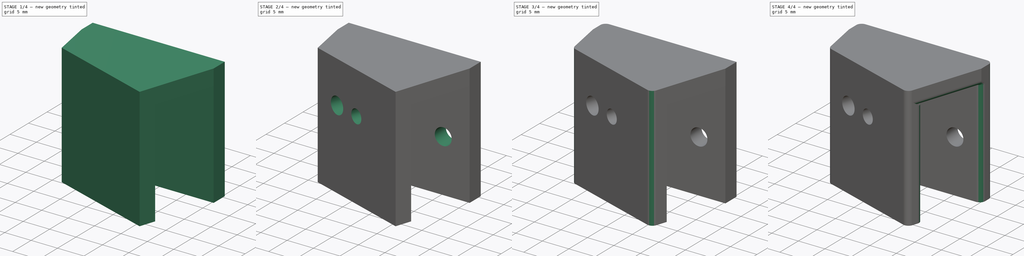
[diagram: build sequence overview — one tinted view per stage of 4, left to right]
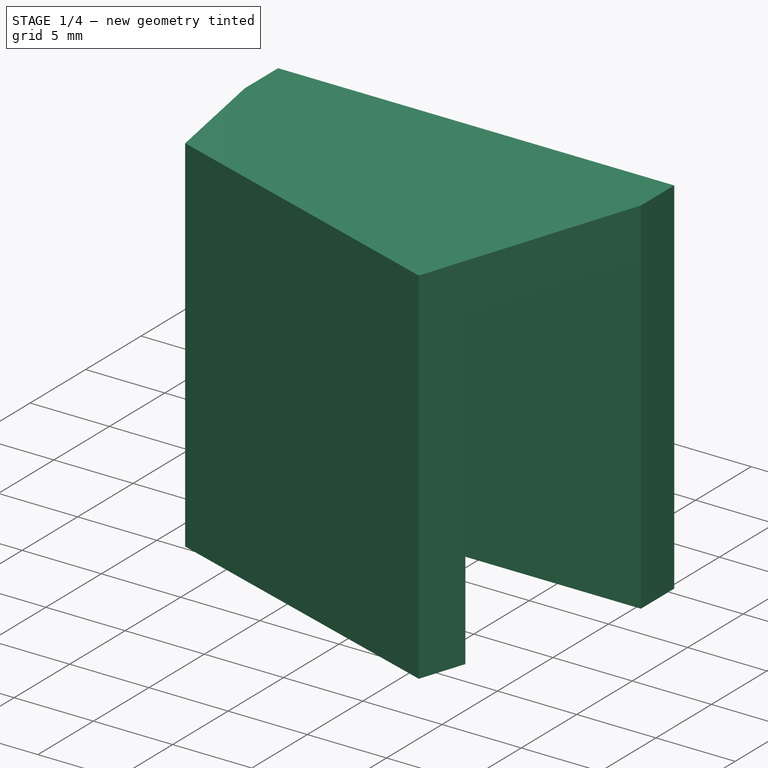
[diagram: stage 1 of 4 — iso view after this stage's code; geometry added in this stage tinted green]
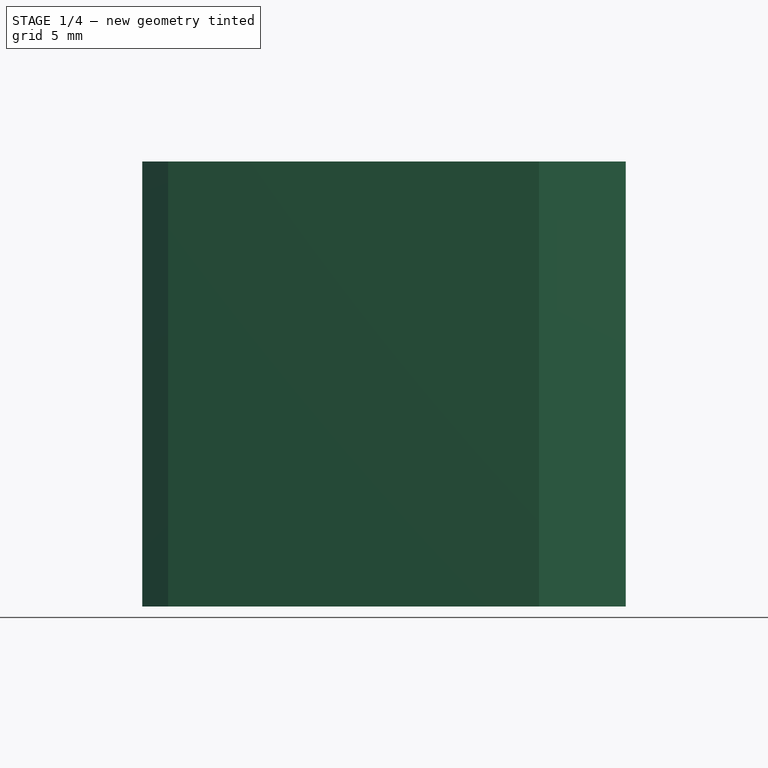
[diagram: stage 1 of 4 — front view after this stage's code; geometry added in this stage tinted green]
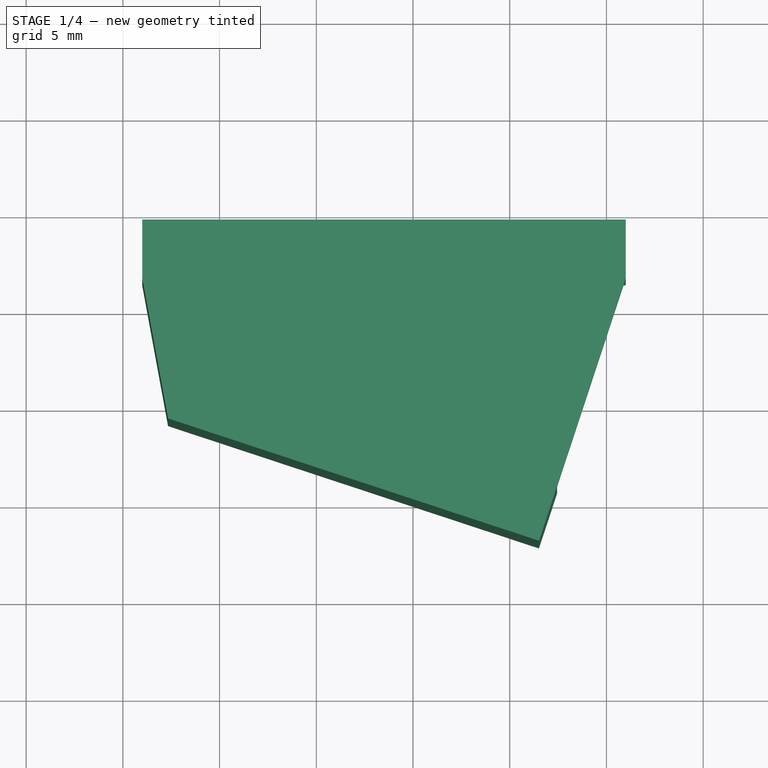
[diagram: stage 1 of 4 — top view after this stage's code; geometry added in this stage tinted green]
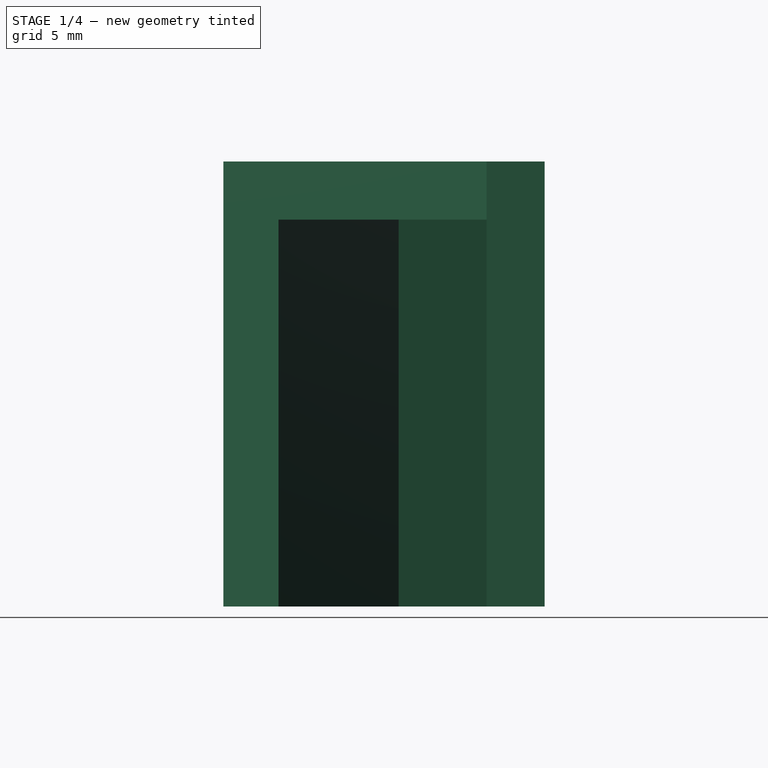
[diagram: stage 1 of 4 — right view after this stage's code; geometry added in this stage tinted green]
FCSTD DOCUMENT  (FreeCAD 0.19R24276 (Git))
Label: Guillotine_part_6_knife_holder_part
License: All rights reserved
LicenseURL: http://en.wikipedia.org/wiki/All_rights_reserved
objects: Sketcher::SketchObject×5, PartDesign::Fillet×5, PartDesign::Pad×2, PartDesign::Pocket×2, PartDesign::Body×1
note: 24 computed .brp shape members not serialized (recipe doc carries the construction recipe); baked Part::Feature solids carry a one-line shape summary decoded from their .brp

FEATURE [Sketcher::SketchObject] Sketch
  FullyConstrained = false
  MapMode = 5
  Support = -> [XY_Plane]
  sketch-geometry (111):
    g0: Circle CenterX=-54 CenterY=0 CenterZ=0 NormalX=0 NormalY=0 NormalZ=1 AngleXU=0 Radius=7.65
    g1: Circle CenterX=54 CenterY=0 CenterZ=0 NormalX=0 NormalY=0 NormalZ=1 AngleXU=0 Radius=7.65
    g2: LineSegment StartX=62.5 StartY=8.5 StartZ=0 EndX=45.5 EndY=8.5 EndZ=0
    g3: LineSegment StartX=45.5 StartY=8.5 StartZ=0 EndX=45.5 EndY=-8.5 EndZ=0
    g4: LineSegment StartX=45.5 StartY=-8.5 StartZ=0 EndX=62.5 EndY=-8.5 EndZ=0
    g5: LineSegment StartX=62.5 StartY=-8.5 StartZ=0 EndX=62.5 EndY=8.5 EndZ=0
    g6: Circle CenterX=54 CenterY=0 CenterZ=0 NormalX=0 NormalY=0 NormalZ=1 AngleXU=0 Radius=12.0208
    g7: Circle CenterX=45.5 CenterY=8.5 CenterZ=0 NormalX=0 NormalY=0 NormalZ=1 AngleXU=0 Radius=1.6
    g8: Circle CenterX=62.5 CenterY=8.5 CenterZ=0 NormalX=0 NormalY=0 NormalZ=1 AngleXU=0 Radius=1.6
    g9: Circle CenterX=62.5 CenterY=-8.5 CenterZ=0 NormalX=0 NormalY=0 NormalZ=1 AngleXU=0 Radius=1.6
    g10: Circle CenterX=45.5 CenterY=-8.5 CenterZ=0 NormalX=0 NormalY=0 NormalZ=1 AngleXU=0 Radius=1.6
    g11: Circle CenterX=-54 CenterY=0 CenterZ=0 NormalX=0 NormalY=0 NormalZ=1 AngleXU=0 Radius=7.65
    g12: LineSegment StartX=-62.5 StartY=8.5 StartZ=0 EndX=-45.5 EndY=8.5 EndZ=0
    g13: LineSegment StartX=-45.5 StartY=8.5 StartZ=0 EndX=-45.5 EndY=-8.5 EndZ=0
    g14: LineSegment StartX=-45.5 StartY=-8.5 StartZ=0 EndX=-62.5 EndY=-8.5 EndZ=0
    g15: LineSegment StartX=-62.5 StartY=-8.5 StartZ=0 EndX=-62.5 EndY=8.5 EndZ=0
    g16: Circle CenterX=-54 CenterY=0 CenterZ=0 NormalX=0 NormalY=0 NormalZ=1 AngleXU=0 Radius=12.0208
    g17: Circle CenterX=-45.5 CenterY=8.5 CenterZ=0 NormalX=0 NormalY=0 NormalZ=1 AngleXU=0 Radius=1.6
    g18: Circle CenterX=-62.5 CenterY=8.5 CenterZ=0 NormalX=0 NormalY=0 NormalZ=1 AngleXU=0 Radius=1.6
    g19: Circle CenterX=-62.5 CenterY=-8.5 CenterZ=0 NormalX=0 NormalY=0 NormalZ=1 AngleXU=0 Radius=1.6
    g20: Circle CenterX=-45.5 CenterY=-8.5 CenterZ=0 NormalX=0 NormalY=0 NormalZ=1 AngleXU=0 Radius=1.6
    g21: LineSegment StartX=-66 StartY=12.5 StartZ=0 EndX=66 EndY=12.5 EndZ=0
    g22: LineSegment StartX=66 StartY=12.5 StartZ=0 EndX=66 EndY=-12.5 EndZ=0
    g23: LineSegment StartX=66 StartY=-12.5 StartZ=0 EndX=-66 EndY=-12.5 EndZ=0
    g24: LineSegment StartX=-66 StartY=-12.5 StartZ=0 EndX=-66 EndY=12.5 EndZ=0
    g25: LineSegment StartX=-25 StartY=0 StartZ=0 EndX=-25 EndY=-12.5 EndZ=0
    g26: LineSegment StartX=15 StartY=0 StartZ=0 EndX=15 EndY=-12.5 EndZ=0
    g27: ArcOfCircle CenterX=-28 CenterY=0 CenterZ=0 NormalX=0 NormalY=0 NormalZ=1 AngleXU=0 Radius=5 StartAngle=1.5708 EndAngle=4.71239
    g28: ArcOfCircle CenterX=18 CenterY=0 CenterZ=0 NormalX=0 NormalY=0 NormalZ=1 AngleXU=0 Radius=5 StartAngle=4.71239 EndAngle=7.85398
    g29: LineSegment StartX=-28 StartY=-5 StartZ=0 EndX=18 EndY=-5 EndZ=0
    g30: LineSegment StartX=-28 StartY=5 StartZ=0 EndX=18 EndY=5 EndZ=0
    g31: LineSegment StartX=41.5 StartY=27.514 StartZ=0 EndX=41.5 EndY=-12.5 EndZ=0
    g32: Circle CenterX=0 CenterY=44 CenterZ=0 NormalX=0 NormalY=0 NormalZ=1 AngleXU=0 Radius=41.5
    g33: Circle CenterX=0 CenterY=-44 CenterZ=0 NormalX=0 NormalY=0 NormalZ=1 AngleXU=0 Radius=41.5
    g34: LineSegment StartX=-37 StartY=8.5 StartZ=0 EndX=37 EndY=8.5 EndZ=0
    g35: LineSegment StartX=37 StartY=8.5 StartZ=0 EndX=37 EndY=-8.5 EndZ=0
    g36: LineSegment StartX=37 StartY=-8.5 StartZ=0 EndX=-37 EndY=-8.5 EndZ=0
    g37: LineSegment StartX=-37 StartY=-8.5 StartZ=0 EndX=-37 EndY=8.5 EndZ=0
    g38: LineSegment StartX=-37 StartY=8.5 StartZ=0 EndX=-41 EndY=12.5 EndZ=0
    g39: LineSegment StartX=-37 StartY=-8.5 StartZ=0 EndX=-41 EndY=-12.5 EndZ=0
    g40: LineSegment StartX=37 StartY=-8.5 StartZ=0 EndX=41 EndY=-12.5 EndZ=0
    g41: LineSegment StartX=37 StartY=8.5 StartZ=0 EndX=41 EndY=12.5 EndZ=0
    g42: LineSegment StartX=41 StartY=12.5 StartZ=0 EndX=66 EndY=12.5 EndZ=0
    g43: LineSegment StartX=41 StartY=-12.5 StartZ=0 EndX=66 EndY=-12.5 EndZ=0
    g44: LineSegment StartX=-66 StartY=-12.5 StartZ=0 EndX=-41 EndY=-12.5 EndZ=0
    g45: LineSegment StartX=-66 StartY=12.5 StartZ=0 EndX=-41 EndY=12.5 EndZ=0
    g46: LineSegment StartX=0 StartY=0 StartZ=0 EndX=15 EndY=0 EndZ=0
    g47: LineSegment StartX=0 StartY=0 StartZ=0 EndX=-25 EndY=0 EndZ=0
    g48: Circle CenterX=-14.5 CenterY=0 CenterZ=0 NormalX=0 NormalY=0 NormalZ=1 AngleXU=0 Radius=1.5
    g49: Circle CenterX=-18.5 CenterY=0 CenterZ=0 NormalX=0 NormalY=0 NormalZ=1 AngleXU=0 Radius=1.5
    g50: ArcOfCircle CenterX=-28 CenterY=0 CenterZ=0 NormalX=0 NormalY=0 NormalZ=1 AngleXU=0 Radius=5 StartAngle=1.5708 EndAngle=4.71239
    g51: ArcOfCircle CenterX=-11.5 CenterY=1e-16 CenterZ=0 NormalX=0 NormalY=0 NormalZ=1 AngleXU=0 Radius=5 StartAngle=4.71239 EndAngle=7.85398
    g52: LineSegment StartX=-28 StartY=-5 StartZ=0 EndX=-11.5 EndY=-5 EndZ=0
    g53: LineSegment StartX=-28 StartY=5 StartZ=0 EndX=-11.5 EndY=5 EndZ=0
    g54: ArcOfCircle CenterX=18 CenterY=0 CenterZ=0 NormalX=0 NormalY=0 NormalZ=1 AngleXU=0 Radius=5 StartAngle=4.71239 EndAngle=7.85398
    g55: ArcOfCircle CenterX=12 CenterY=4e-16 CenterZ=0 NormalX=0 NormalY=0 NormalZ=1 AngleXU=0 Radius=5 StartAngle=1.5708 EndAngle=4.71239
    g56: LineSegment StartX=18 StartY=5 StartZ=0 EndX=12 EndY=5 EndZ=0
    g57: LineSegment StartX=18 StartY=-5 StartZ=0 EndX=12 EndY=-5 EndZ=0
    g58: LineSegment StartX=-28 StartY=5 StartZ=0 EndX=-11.5 EndY=5 EndZ=0
    g59: LineSegment StartX=18 StartY=5 StartZ=0 EndX=12 EndY=5 EndZ=0
    g60: LineSegment StartX=18 StartY=-5 StartZ=0 EndX=12 EndY=-5 EndZ=0
    g61: LineSegment StartX=-11.5 StartY=-5 StartZ=0 EndX=-28 EndY=-5 EndZ=0
    g62: LineSegment StartX=75.7346 StartY=-24.8515 StartZ=0 EndX=91.7346 EndY=-24.8515 EndZ=0
    g63: LineSegment StartX=83.7346 StartY=-32.114 StartZ=0 EndX=83.7346 EndY=-24.8515 EndZ=0
    g64: Circle CenterX=54 CenterY=0 CenterZ=0 NormalX=0 NormalY=0 NormalZ=1 AngleXU=0 Radius=4
    g65: Circle CenterX=45.5 CenterY=-8.5 CenterZ=0 NormalX=0 NormalY=0 NormalZ=1 AngleXU=0 Radius=3
    g66: Circle CenterX=62.5 CenterY=-8.5 CenterZ=0 NormalX=0 NormalY=0 NormalZ=1 AngleXU=0 Radius=3
    g67: LineSegment StartX=66 StartY=-12.5 StartZ=0 EndX=36 EndY=-12.5 EndZ=0
    g68: LineSegment StartX=36 StartY=-12.5 StartZ=0 EndX=36 EndY=-15.5 EndZ=0
    g69: LineSegment StartX=36 StartY=-15.5 StartZ=0 EndX=66 EndY=-15.5 EndZ=0
    g70: LineSegment StartX=66 StartY=-15.5 StartZ=0 EndX=66 EndY=-12.5 EndZ=0
    g71: LineSegment StartX=43.2968 StartY=-29.2576 StartZ=0 EndX=52.7935 EndY=-32.3899 EndZ=0
    g72: LineSegment StartX=45.1762 StartY=-23.5595 StartZ=0 EndX=54.673 EndY=-26.6919 EndZ=0
    g73: LineSegment StartX=43.2968 StartY=-29.2576 StartZ=0 EndX=45.1762 EndY=-23.5595 EndZ=0
    g74: LineSegment StartX=52.7935 StartY=-32.3899 StartZ=0 EndX=54.673 EndY=-26.6919 EndZ=0
    g75: LineSegment StartX=39.4115 StartY=-56.9993 StartZ=0 EndX=57.7987 EndY=-1.25295 EndZ=0
    g76: LineSegment StartX=0 StartY=-44 StartZ=0 EndX=39.4115 EndY=-56.9993 EndZ=0
    g77: LineSegment StartX=54 StartY=0 StartZ=0 EndX=57.7987 EndY=-1.25295 EndZ=0
    g78: LineSegment StartX=48.0452 StartY=-30.8238 StartZ=0 EndX=50.8643 EndY=-22.2767 EndZ=0
    g79: LineSegment StartX=42.9836 StartY=-30.2072 StartZ=0 EndX=52.4803 EndY=-33.3396 EndZ=0
    g80: LineSegment StartX=43.2968 StartY=-29.2576 StartZ=0 EndX=42.9836 EndY=-30.2072 EndZ=0
    g81: LineSegment StartX=52.7935 StartY=-32.3899 StartZ=0 EndX=52.4803 EndY=-33.3396 EndZ=0
    g82: LineSegment StartX=44.2564 StartY=-32.7331 StartZ=0 EndX=49.9545 EndY=-34.6125 EndZ=0
    g83: LineSegment StartX=48.0452 StartY=-30.8238 StartZ=0 EndX=47.1055 EndY=-33.6728 EndZ=0
    g84: LineSegment StartX=49.9545 StartY=-34.6125 StartZ=0 EndX=50.581 EndY=-32.7131 EndZ=0
    g85: LineSegment StartX=44.2564 StartY=-32.7331 StartZ=0 EndX=44.8829 EndY=-30.8337 EndZ=0
    g86: LineSegment StartX=48.0153 StartY=-21.337 StartZ=0 EndX=47.0756 EndY=-24.186 EndZ=0
    g87: LineSegment StartX=44.8829 StartY=-30.8337 StartZ=0 EndX=47.0756 EndY=-24.186 EndZ=0
    g88: LineSegment StartX=48.0153 StartY=-21.337 StartZ=0 EndX=53.7133 EndY=-23.2164 EndZ=0
    g89: LineSegment StartX=50.581 StartY=-32.7131 StartZ=0 EndX=52.7736 EndY=-26.0654 EndZ=0
    g90: LineSegment StartX=52.7736 StartY=-26.0654 StartZ=0 EndX=53.7133 EndY=-23.2164 EndZ=0
    g91: LineSegment StartX=49.4398 StartY=-21.8068 StartZ=0 EndX=50.0663 EndY=-19.9075 EndZ=0
    g92: LineSegment StartX=52.2888 StartY=-22.7465 StartZ=0 EndX=52.9153 EndY=-20.8472 EndZ=0
    g93: LineSegment StartX=50.0663 StartY=-19.9075 StartZ=0 EndX=52.9153 EndY=-20.8472 EndZ=0
    g94: LineSegment StartX=50.8643 StartY=-22.2767 StartZ=0 EndX=47.1055 EndY=-33.6728 EndZ=0
    g95: LineSegment StartX=66 StartY=-15.5 StartZ=0 EndX=41 EndY=-15.5 EndZ=0
    g96: LineSegment StartX=41 StartY=-15.5 StartZ=0 EndX=41 EndY=-18.5 EndZ=0
    g97: LineSegment StartX=41 StartY=-18.5 StartZ=0 EndX=66 EndY=-18.5 EndZ=0
    g98: LineSegment StartX=66 StartY=-18.5 StartZ=0 EndX=66 EndY=-15.5 EndZ=0
    g99: LineSegment StartX=41 StartY=-15.5 StartZ=0 EndX=41 EndY=-28.5 EndZ=0
    g100: LineSegment StartX=46 StartY=-13.7679 StartZ=0 EndX=46 EndY=-20.4986 EndZ=0
    g101: LineSegment StartX=43.2968 StartY=-29.2576 StartZ=0 EndX=41 EndY=-28.5 EndZ=0
    g102: LineSegment StartX=45.1762 StartY=-23.5595 StartZ=0 EndX=46.845 EndY=-18.5 EndZ=0
    g103: LineSegment StartX=66 StartY=-18.5 StartZ=0 EndX=61.512 EndY=-32.1066 EndZ=0
    g104: LineSegment StartX=44.2365 StartY=-26.4085 StartZ=0 EndX=53.7333 EndY=-29.5409 EndZ=0
    g105: LineSegment StartX=42.3372 StartY=-25.7821 StartZ=0 EndX=41 EndY=-18.5 EndZ=0
    g106: LineSegment StartX=44.2365 StartY=-26.4085 StartZ=0 EndX=42.3372 EndY=-25.7821 EndZ=0
    g107: LineSegment StartX=53.7333 StartY=-29.5409 StartZ=0 EndX=61.512 EndY=-32.1066 EndZ=0
    g108: LineSegment StartX=41 StartY=-15.5 StartZ=0 EndX=66 EndY=-15.5 EndZ=0
    g109: Circle CenterX=0 CenterY=-44 CenterZ=0 NormalX=0 NormalY=0 NormalZ=1 AngleXU=0 Radius=43
    g110: Circle CenterX=0 CenterY=44 CenterZ=0 NormalX=0 NormalY=0 NormalZ=1 AngleXU=0 Radius=43
  constraints (285):
    c: PointOnObject(g0,g-1)
    c: Symmetric(g0,g1,g-1)
    c: DistanceX(g0,g1) = 108
    c: Diameter(g1) = 15.3
    c: Equal(g0,g1)
    c: Coincident(g2,g3)
    c: Coincident(g3,g4)
    c: Coincident(g4,g5)
    c: Coincident(g5,g2)
    c: Equal(g2,g3)
    c: Equal(g2,g4)
    c: Equal(g2,g5)
    c: PointOnObject(g2,g6)
    c: PointOnObject(g3,g6)
    c: PointOnObject(g4,g6)
    c: PointOnObject(g5,g6)
    c: Coincident(g6,g1)
    c: Horizontal(g2)
    c: DistanceX(g2,g2) = 17
    c: Coincident(g7,g2)
    c: Coincident(g9,g4)
    c: Coincident(g10,g3)
    c: Equal(g10,g7)
    c: Equal(g7,g8)
    c: Equal(g8,g9)
    c: Diameter(g9) = 3.2
    c: Coincident(g8,g2)
    c: Diameter(g11) = 15.3
    c: Coincident(g12,g13)
    c: Coincident(g13,g14)
    c: Coincident(g14,g15)
    c: Coincident(g15,g12)
    c: Equal(g12,g13)
    c: Equal(g12,g14)
    c: Equal(g12,g15)
    c: PointOnObject(g12,g16)
    c: PointOnObject(g13,g16)
    c: PointOnObject(g14,g16)
    c: PointOnObject(g15,g16)
    c: Coincident(g16,g11)
    c: Horizontal(g12)
    c: Coincident(g17,g12)
    c: Coincident(g19,g14)
    c: Coincident(g20,g13)
    c: Equal(g20,g17)
    c: Equal(g17,g18)
    c: Equal(g18,g19)
    c: Diameter(g19) = 3.2
    c: Coincident(g18,g12)
    c: Coincident(g0,g11)
    c: Equal(g2,g12)
    c: Coincident(g21,g22)
    c: Coincident(g22,g23)
    c: Coincident(g23,g24)
    c: Coincident(g24,g21)
    c: Horizontal(g21)
    c: Horizontal(g23)
    c: Vertical(g22)
    c: Vertical(g24)
    c: Symmetric(g21,g22,g-1)
    c: DistanceX(g21,g21) = 132
    c: DistanceY(g24,g24) = 25
    c: Vertical(g25)
    c: Vertical(g26)
    c: PointOnObject(g26,g23)
    c: PointOnObject(g25,g23)
    c: DistanceX(g-1,g26) = 15
    c: DistanceX(g25,g-1) = 25
    c: Tangent(g27,g30) = 1.5708
    c: Tangent(g27,g29) = -1.5708
    c: Tangent(g29,g28) = -1.5708
    c: Tangent(g30,g28) = 1.5708
    c: Horizontal(g29)
    c: Equal(g27,g28)
    c: Horizontal(g-1,g28)
    c: DistanceX(g26,g28) = 3
    c: DistanceX(g27,g25) = 3
    c: Diameter(g28) = 10
    c: Vertical(g31)
    c: PointOnObject(g31,g23)
    c: DistanceX(g-1,g31) = 41.5
    c: PointOnObject(g32,g-2)
    c: DistanceY(g33,g32) = 88
    c: Symmetric(g32,g33,g-1)
    c: Diameter(g32) = 83
    c: Equal(g32,g33)
    c: Coincident(g34,g35)
    c: Coincident(g35,g36)
    c: Coincident(g36,g37)
    c: Coincident(g37,g34)
    c: Horizontal(g34)
    c: Horizontal(g36)
    c: Vertical(g35)
    c: Vertical(g37)
    c: Symmetric(g34,g35,g-1)
    c: DistanceY(g35,g35) = 17
    c: DistanceX(g36,g36) = 74
    c: Coincident(g38,g34)
    c: Angle(g34,g38) = 2.35619
    c: PointOnObject(g38,g21)
    c: Angle(g39,g36) = 2.35619
    c: Coincident(g39,g36)
    c: PointOnObject(g39,g23)
    c: Parallel(g39,g41)
    c: Coincident(g41,g34)
    c: Parallel(g38,g40)
    c: Coincident(g40,g35)
    c: PointOnObject(g40,g23)
    c: PointOnObject(g41,g21)
    c: Coincident(g42,g41)
    c: Coincident(g42,g22)
    c: Coincident(g43,g40)
    c: Coincident(g43,g22)
    c: Coincident(g44,g24)
    c: Coincident(g45,g24)
    c: Coincident(g45,g38)
    c: Coincident(g44,g39)
    c: Coincident(g46,g-1)
    c: Horizontal(g46)
    c: Coincident(g46,g26)
    c: Coincident(g47,g-1)
    c: Horizontal(g47)
    c: Coincident(g25,g47)
    c: PointOnObject(g48,g46)
    c: PointOnObject(g49,g46)
    c: DistanceX(g49,g48) = 4
    c: Diameter(g48) = 3
    c: Equal(g48,g49)
    c: DistanceX(g25,g49) = 6.5
    c: Tangent(g50,g53) = 1.5708
    c: Tangent(g50,g52) = -1.5708
    c: Tangent(g52,g51) = -1.5708
    c: Tangent(g53,g51) = 1.5708
    c: Horizontal(g52)
    c: Equal(g50,g51)
    c: Coincident(g50,g27)
    c: Tangent(g51,g29)
    c: DistanceX(g48,g51) = 3
    c: Tangent(g54,g57) = 1.5708
    c: Tangent(g54,g56) = -1.5708
    c: Tangent(g56,g55) = -1.5708
    c: Tangent(g57,g55) = 1.5708
    c: Horizontal(g56)
    c: Equal(g54,g55)
    c: Coincident(g54,g28)
    c: Tangent(g55,g30)
    c: DistanceX(g55,g26) = 3
    c: Coincident(g58,g27)
    c: Coincident(g59,g28)
    c: Coincident(g58,g51)
    c: Coincident(g59,g55)
    c: Coincident(g60,g28)
    c: Coincident(g61,g51)
    c: Coincident(g61,g27)
    c: Coincident(g60,g55)
    c: Horizontal(g62)
    c: DistanceX(g62,g62) = 16
    c: Vertical(g63)
    c: Symmetric(g62,g62,g63)
    c: Coincident(g64,g1)
    c: Diameter(g64) = 8
    c: Coincident(g65,g10)
    c: Coincident(g66,g9)
    c: Diameter(g65) = 6
    c: Equal(g65,g66)
    c: Coincident(g67,g68)
    c: Coincident(g68,g69)
    c: Coincident(g69,g70)
    c: Coincident(g70,g67)
    c: Horizontal(g67)
    c: Horizontal(g69)
    c: Vertical(g68)
    c: Vertical(g70)
    c: Coincident(g67,g22)
    c: DistanceY(g70,g70) = 3
    c: DistanceX(g69,g69) = 30
    c: Parallel(g71,g72)
    c: Coincident(g73,g71)
    c: Coincident(g74,g71)
    c: Perpendicular(g73,g71)
    c: Perpendicular(g71,g74)
    c: Coincident(g73,g72)
    c: Coincident(g74,g72)
    c: Distance(g74) = 6
    c: Distance(g71) = 10
    c: PointOnObject(g75,g33)
    c: PointOnObject(g75,g64)
    c: Coincident(g76,g33)
    c: Coincident(g76,g75)
    c: Perpendicular(g75,g76)
    c: Coincident(g77,g1)
    c: Coincident(g77,g75)
    c: Perpendicular(g75,g77)
    c: Symmetric(g71,g71,g78)
    c: Parallel(g73,g78)
    c: Parallel(g78,g75)
    c: Parallel(g79,g71)
    c: Coincident(g80,g71)
    c: Coincident(g81,g71)
    c: Parallel(g73,g80)
    c: Parallel(g74,g81)
    c: Coincident(g81,g79)
    c: Coincident(g79,g80)
    c: Distance(g79,g71) = 1
    c: Parallel(g82,g79)
    c: Parallel(g83,g78)
    c: Symmetric(g82,g82,g83)
    c: Coincident(g83,g78)
    c: Distance(g82,g82) = 6
    c: Coincident(g84,g82)
    c: Perpendicular(g84,g82)
    c: PointOnObject(g84,g79)
    c: Coincident(g85,g82)
    c: Parallel(g85,g84)
    c: PointOnObject(g85,g79)
    c: Distance(g82,g84) = 2
    c: Parallel(g78,g86)
    c: PointOnObject(g86,g72)
    c: Coincident(g87,g85)
    c: Parallel(g87,g85)
    c: Coincident(g86,g87)
    c: Coincident(g88,g86)
    c: Parallel(g88,g72)
    c: Coincident(g89,g84)
    c: Parallel(g87,g89)
    c: PointOnObject(g89,g72)
    c: Coincident(g90,g89)
    c: Parallel(g86,g90)
    c: Coincident(g88,g90)
    c: PointOnObject(g91,g88)
    c: PointOnObject(g92,g88)
    c: Perpendicular(g91,g88)
    c: Parallel(g91,g92)
    c: Coincident(g93,g91)
    c: Coincident(g93,g92)
    c: Parallel(g93,g88)
    c: Symmetric(g91,g92,g78)
    c: PointOnObject(g94,g75)
    c: Distance(g93) = 3
    c: Distance(g89,g88) = 3
    c: Distance(g92,g92) = 2
    c: Coincident(g83,g94)
    c: Coincident(g94,g78)
    c: Coincident(g95,g96)
    c: Coincident(g96,g97)
    c: Coincident(g97,g98)
    c: Coincident(g98,g95)
    c: Horizontal(g95)
    c: Horizontal(g97)
    c: Vertical(g96)
    c: Vertical(g98)
    c: Coincident(g95,g69)
    c: DistanceY(g98,g98) = 3
    c: Vertical(g99)
    c: Vertical(g100)
    c: Coincident(g101,g71)
    c: Parallel(g101,g71)
    c: Coincident(g99,g101)
    c: DistanceX(g68,g99) = 5
    c: Coincident(g95,g99)
    c: Coincident(g102,g72)
    c: Parallel(g73,g102)
    c: PointOnObject(g102,g97)
    c: Coincident(g103,g97)
    c: DistanceY(g99,g99) = 13
    c: Parallel(g104,g71)
    c: PointOnObject(g104,g74)
    c: PointOnObject(g104,g73)
    c: Distance(g71,g104) = 3
    c: Coincident(g105,g96)
    c: Coincident(g106,g104)
    c: Coincident(g107,g104)
    c: Parallel(g106,g104)
    c: Parallel(g104,g107)
    c: Coincident(g103,g107)
    c: Coincident(g105,g106)
    c: Perpendicular(g103,g107)
    c: Distance(g105,g104) = 2
    c: Coincident(g108,g96)
    c: Coincident(g108,g98)
    c: DistanceX(g68,g100) = 10
    c: Coincident(g109,g33)
    c: Coincident(g110,g32)
    c: Diameter(g110) = 86
    c: Equal(g110,g109)
FEATURE [Sketcher::SketchObject] Sketch001
  FullyConstrained = false
  MapMode = 5
  Support = -> [XY_Plane]
  sketch-geometry (117):
    g0: Circle CenterX=-54 CenterY=0 CenterZ=0 NormalX=0 NormalY=0 NormalZ=1 AngleXU=0 Radius=7.65
    g1: Circle CenterX=54 CenterY=0 CenterZ=0 NormalX=0 NormalY=0 NormalZ=1 AngleXU=0 Radius=7.65
    g2: LineSegment StartX=62.5 StartY=8.5 StartZ=0 EndX=45.5 EndY=8.5 EndZ=0
    g3: LineSegment StartX=45.5 StartY=8.5 StartZ=0 EndX=45.5 EndY=-8.5 EndZ=0
    g4: LineSegment StartX=45.5 StartY=-8.5 StartZ=0 EndX=62.5 EndY=-8.5 EndZ=0
    g5: LineSegment StartX=62.5 StartY=-8.5 StartZ=0 EndX=62.5 EndY=8.5 EndZ=0
    g6: Circle CenterX=54 CenterY=0 CenterZ=0 NormalX=0 NormalY=0 NormalZ=1 AngleXU=0 Radius=12.0208
    g7: Circle CenterX=45.5 CenterY=8.5 CenterZ=0 NormalX=0 NormalY=0 NormalZ=1 AngleXU=0 Radius=1.6
    g8: Circle CenterX=62.5 CenterY=8.5 CenterZ=0 NormalX=0 NormalY=0 NormalZ=1 AngleXU=0 Radius=1.6
    g9: Circle CenterX=62.5 CenterY=-8.5 CenterZ=0 NormalX=0 NormalY=0 NormalZ=1 AngleXU=0 Radius=1.6
    g10: Circle CenterX=45.5 CenterY=-8.5 CenterZ=0 NormalX=0 NormalY=0 NormalZ=1 AngleXU=0 Radius=1.6
    g11: Circle CenterX=-54 CenterY=0 CenterZ=0 NormalX=0 NormalY=0 NormalZ=1 AngleXU=0 Radius=7.65
    g12: LineSegment StartX=-62.5 StartY=8.5 StartZ=0 EndX=-45.5 EndY=8.5 EndZ=0
    g13: LineSegment StartX=-45.5 StartY=8.5 StartZ=0 EndX=-45.5 EndY=-8.5 EndZ=0
    g14: LineSegment StartX=-45.5 StartY=-8.5 StartZ=0 EndX=-62.5 EndY=-8.5 EndZ=0
    g15: LineSegment StartX=-62.5 StartY=-8.5 StartZ=0 EndX=-62.5 EndY=8.5 EndZ=0
    g16: Circle CenterX=-54 CenterY=0 CenterZ=0 NormalX=0 NormalY=0 NormalZ=1 AngleXU=0 Radius=12.0208
    g17: Circle CenterX=-45.5 CenterY=8.5 CenterZ=0 NormalX=0 NormalY=0 NormalZ=1 AngleXU=0 Radius=1.6
    g18: Circle CenterX=-62.5 CenterY=8.5 CenterZ=0 NormalX=0 NormalY=0 NormalZ=1 AngleXU=0 Radius=1.6
    g19: Circle CenterX=-62.5 CenterY=-8.5 CenterZ=0 NormalX=0 NormalY=0 NormalZ=1 AngleXU=0 Radius=1.6
    g20: Circle CenterX=-45.5 CenterY=-8.5 CenterZ=0 NormalX=0 NormalY=0 NormalZ=1 AngleXU=0 Radius=1.6
    g21: LineSegment StartX=-66 StartY=12.5 StartZ=0 EndX=66 EndY=12.5 EndZ=0
    g22: LineSegment StartX=66 StartY=12.5 StartZ=0 EndX=66 EndY=-12.5 EndZ=0
    g23: LineSegment StartX=66 StartY=-12.5 StartZ=0 EndX=-66 EndY=-12.5 EndZ=0
    g24: LineSegment StartX=-66 StartY=-12.5 StartZ=0 EndX=-66 EndY=12.5 EndZ=0
    g25: LineSegment StartX=-25 StartY=0 StartZ=0 EndX=-25 EndY=-12.5 EndZ=0
    g26: LineSegment StartX=15 StartY=0 StartZ=0 EndX=15 EndY=-12.5 EndZ=0
    g27: ArcOfCircle CenterX=-28 CenterY=0 CenterZ=0 NormalX=0 NormalY=0 NormalZ=1 AngleXU=0 Radius=5 StartAngle=1.5708 EndAngle=4.71239
    g28: ArcOfCircle CenterX=18 CenterY=0 CenterZ=0 NormalX=0 NormalY=0 NormalZ=1 AngleXU=0 Radius=5 StartAngle=4.71239 EndAngle=7.85398
    g29: LineSegment StartX=-28 StartY=-5 StartZ=0 EndX=18 EndY=-5 EndZ=0
    g30: LineSegment StartX=-28 StartY=5 StartZ=0 EndX=18 EndY=5 EndZ=0
    g31: LineSegment StartX=41.5 StartY=27.514 StartZ=0 EndX=41.5 EndY=-12.5 EndZ=0
    g32: Circle CenterX=0 CenterY=44 CenterZ=0 NormalX=0 NormalY=0 NormalZ=1 AngleXU=0 Radius=41.5
    g33: Circle CenterX=0 CenterY=-44 CenterZ=0 NormalX=0 NormalY=0 NormalZ=1 AngleXU=0 Radius=41.5
    g34: LineSegment StartX=-37 StartY=8.5 StartZ=0 EndX=37 EndY=8.5 EndZ=0
    g35: LineSegment StartX=37 StartY=8.5 StartZ=0 EndX=37 EndY=-8.5 EndZ=0
    g36: LineSegment StartX=37 StartY=-8.5 StartZ=0 EndX=-37 EndY=-8.5 EndZ=0
    g37: LineSegment StartX=-37 StartY=-8.5 StartZ=0 EndX=-37 EndY=8.5 EndZ=0
    g38: LineSegment StartX=-37 StartY=8.5 StartZ=0 EndX=-41 EndY=12.5 EndZ=0
    g39: LineSegment StartX=-37 StartY=-8.5 StartZ=0 EndX=-41 EndY=-12.5 EndZ=0
    g40: LineSegment StartX=37 StartY=-8.5 StartZ=0 EndX=41 EndY=-12.5 EndZ=0
    g41: LineSegment StartX=37 StartY=8.5 StartZ=0 EndX=41 EndY=12.5 EndZ=0
    g42: LineSegment StartX=41 StartY=12.5 StartZ=0 EndX=66 EndY=12.5 EndZ=0
    g43: LineSegment StartX=41 StartY=-12.5 StartZ=0 EndX=66 EndY=-12.5 EndZ=0
    g44: LineSegment StartX=-66 StartY=-12.5 StartZ=0 EndX=-41 EndY=-12.5 EndZ=0
    g45: LineSegment StartX=-66 StartY=12.5 StartZ=0 EndX=-41 EndY=12.5 EndZ=0
    g46: LineSegment StartX=0 StartY=0 StartZ=0 EndX=15 EndY=0 EndZ=0
    g47: LineSegment StartX=0 StartY=0 StartZ=0 EndX=-25 EndY=0 EndZ=0
    g48: Circle CenterX=-14.5 CenterY=0 CenterZ=0 NormalX=0 NormalY=0 NormalZ=1 AngleXU=0 Radius=1.5
    g49: Circle CenterX=-18.5 CenterY=0 CenterZ=0 NormalX=0 NormalY=0 NormalZ=1 AngleXU=0 Radius=1.5
    g50: ArcOfCircle CenterX=-28 CenterY=0 CenterZ=0 NormalX=0 NormalY=0 NormalZ=1 AngleXU=0 Radius=5 StartAngle=1.5708 EndAngle=4.71239
    g51: ArcOfCircle CenterX=-11.5 CenterY=1e-16 CenterZ=0 NormalX=0 NormalY=0 NormalZ=1 AngleXU=0 Radius=5 StartAngle=4.71239 EndAngle=7.85398
    g52: LineSegment StartX=-28 StartY=-5 StartZ=0 EndX=-11.5 EndY=-5 EndZ=0
    g53: LineSegment StartX=-28 StartY=5 StartZ=0 EndX=-11.5 EndY=5 EndZ=0
    g54: ArcOfCircle CenterX=18 CenterY=0 CenterZ=0 NormalX=0 NormalY=0 NormalZ=1 AngleXU=0 Radius=5 StartAngle=4.71239 EndAngle=7.85398
    g55: ArcOfCircle CenterX=12 CenterY=-2e-16 CenterZ=0 NormalX=0 NormalY=0 NormalZ=1 AngleXU=0 Radius=5 StartAngle=1.5708 EndAngle=4.71239
    g56: LineSegment StartX=18 StartY=5 StartZ=0 EndX=12 EndY=5 EndZ=0
    g57: LineSegment StartX=18 StartY=-5 StartZ=0 EndX=12 EndY=-5 EndZ=0
    g58: LineSegment StartX=-28 StartY=5 StartZ=0 EndX=-11.5 EndY=5 EndZ=0
    g59: LineSegment StartX=18 StartY=5 StartZ=0 EndX=12 EndY=5 EndZ=0
    g60: LineSegment StartX=18 StartY=-5 StartZ=0 EndX=12 EndY=-5 EndZ=0
    g61: LineSegment StartX=-11.5 StartY=-5 StartZ=0 EndX=-28 EndY=-5 EndZ=0
    g62: LineSegment StartX=75.7346 StartY=-24.8515 StartZ=0 EndX=91.7346 EndY=-24.8515 EndZ=0
    g63: LineSegment StartX=83.7346 StartY=-32.114 StartZ=0 EndX=83.7346 EndY=-24.8515 EndZ=0
    g64: Circle CenterX=54 CenterY=0 CenterZ=0 NormalX=0 NormalY=0 NormalZ=1 AngleXU=0 Radius=4
    g65: Circle CenterX=45.5 CenterY=-8.5 CenterZ=0 NormalX=0 NormalY=0 NormalZ=1 AngleXU=0 Radius=3
    g66: Circle CenterX=62.5 CenterY=-8.5 CenterZ=0 NormalX=0 NormalY=0 NormalZ=1 AngleXU=0 Radius=3
    g67: LineSegment StartX=66 StartY=-12.5 StartZ=0 EndX=36 EndY=-12.5 EndZ=0
    g68: LineSegment StartX=36 StartY=-12.5 StartZ=0 EndX=36 EndY=-15.5 EndZ=0
    g69: LineSegment StartX=36 StartY=-15.5 StartZ=0 EndX=66 EndY=-15.5 EndZ=0
    g70: LineSegment StartX=66 StartY=-15.5 StartZ=0 EndX=66 EndY=-12.5 EndZ=0
    g71: LineSegment StartX=43.2968 StartY=-29.2576 StartZ=0 EndX=52.7935 EndY=-32.3899 EndZ=0
    g72: LineSegment StartX=45.1762 StartY=-23.5595 StartZ=0 EndX=54.673 EndY=-26.6919 EndZ=0
    g73: LineSegment StartX=43.2968 StartY=-29.2576 StartZ=0 EndX=45.1762 EndY=-23.5595 EndZ=0
    g74: LineSegment StartX=52.7935 StartY=-32.3899 StartZ=0 EndX=54.673 EndY=-26.6919 EndZ=0
    g75: LineSegment StartX=39.4115 StartY=-56.9993 StartZ=0 EndX=57.7987 EndY=-1.25295 EndZ=0
    g76: LineSegment StartX=0 StartY=-44 StartZ=0 EndX=39.4115 EndY=-56.9993 EndZ=0
    g77: LineSegment StartX=54 StartY=0 StartZ=0 EndX=57.7987 EndY=-1.25295 EndZ=0
    g78: LineSegment StartX=48.0452 StartY=-30.8238 StartZ=0 EndX=50.8643 EndY=-22.2767 EndZ=0
    g79: LineSegment StartX=42.9836 StartY=-30.2072 StartZ=0 EndX=52.4803 EndY=-33.3396 EndZ=0
    g80: LineSegment StartX=43.2968 StartY=-29.2576 StartZ=0 EndX=42.9836 EndY=-30.2072 EndZ=0
    g81: LineSegment StartX=52.7935 StartY=-32.3899 StartZ=0 EndX=52.4803 EndY=-33.3396 EndZ=0
    g82: LineSegment StartX=44.2564 StartY=-32.7331 StartZ=0 EndX=49.9545 EndY=-34.6125 EndZ=0
    g83: LineSegment StartX=48.0452 StartY=-30.8238 StartZ=0 EndX=47.1055 EndY=-33.6728 EndZ=0
    g84: LineSegment StartX=49.9545 StartY=-34.6125 StartZ=0 EndX=50.581 EndY=-32.7131 EndZ=0
    g85: LineSegment StartX=44.2564 StartY=-32.7331 StartZ=0 EndX=44.8829 EndY=-30.8337 EndZ=0
    g86: LineSegment StartX=48.0153 StartY=-21.337 StartZ=0 EndX=47.0756 EndY=-24.186 EndZ=0
    g87: LineSegment StartX=44.8829 StartY=-30.8337 StartZ=0 EndX=47.0756 EndY=-24.186 EndZ=0
    g88: LineSegment StartX=48.0153 StartY=-21.337 StartZ=0 EndX=53.7133 EndY=-23.2164 EndZ=0
    g89: LineSegment StartX=50.581 StartY=-32.7131 StartZ=0 EndX=52.7736 EndY=-26.0654 EndZ=0
    g90: LineSegment StartX=52.7736 StartY=-26.0654 StartZ=0 EndX=53.7133 EndY=-23.2164 EndZ=0
    g91: LineSegment StartX=49.4398 StartY=-21.8068 StartZ=0 EndX=50.0663 EndY=-19.9075 EndZ=0
    g92: LineSegment StartX=52.2888 StartY=-22.7465 StartZ=0 EndX=52.9153 EndY=-20.8472 EndZ=0
    g93: LineSegment StartX=50.0663 StartY=-19.9075 StartZ=0 EndX=52.9153 EndY=-20.8472 EndZ=0
    g94: LineSegment StartX=50.8643 StartY=-22.2767 StartZ=0 EndX=47.1055 EndY=-33.6728 EndZ=0
    g95: LineSegment StartX=66 StartY=-15.5 StartZ=0 EndX=41 EndY=-15.5 EndZ=0
    g96: LineSegment StartX=41 StartY=-15.5 StartZ=0 EndX=41 EndY=-18.5 EndZ=0
    g97: LineSegment StartX=41 StartY=-18.5 StartZ=0 EndX=66 EndY=-18.5 EndZ=0
    g98: LineSegment StartX=66 StartY=-18.5 StartZ=0 EndX=66 EndY=-15.5 EndZ=0
    g99: LineSegment StartX=41 StartY=-15.5 StartZ=0 EndX=41 EndY=-28.5 EndZ=0
    g100: LineSegment StartX=46 StartY=-14.2071 StartZ=0 EndX=46 EndY=-20.9379 EndZ=0
    g101: LineSegment StartX=43.2968 StartY=-29.2576 StartZ=0 EndX=41 EndY=-28.5 EndZ=0
    g102: LineSegment StartX=45.1762 StartY=-23.5595 StartZ=0 EndX=46.845 EndY=-18.5 EndZ=0
    g103: LineSegment StartX=66 StartY=-18.5 StartZ=0 EndX=61.512 EndY=-32.1066 EndZ=0
    g104: LineSegment StartX=44.2365 StartY=-26.4085 StartZ=0 EndX=53.7333 EndY=-29.5409 EndZ=0
    g105: LineSegment StartX=42.3372 StartY=-25.7821 StartZ=0 EndX=41 EndY=-18.5 EndZ=0
    g106: LineSegment StartX=44.2365 StartY=-26.4085 StartZ=0 EndX=42.3372 EndY=-25.7821 EndZ=0
    g107: LineSegment StartX=53.7333 StartY=-29.5409 StartZ=0 EndX=61.512 EndY=-32.1066 EndZ=0
    g108: LineSegment StartX=45.1762 StartY=-23.5595 StartZ=0 EndX=41.7197 EndY=-22.4194 EndZ=0
    g109: LineSegment StartX=54.673 StartY=-26.6919 StartZ=0 EndX=62.4517 EndY=-29.2576 EndZ=0
    g110: LineSegment StartX=61.512 StartY=-32.1066 StartZ=0 EndX=62.4517 EndY=-29.2576 EndZ=0
    g111: LineSegment StartX=42.3372 StartY=-25.7821 StartZ=0 EndX=41.7197 EndY=-22.4194 EndZ=0
    g112: LineSegment StartX=43.619 StartY=-23.0459 StartZ=0 EndX=62.4517 EndY=-29.2576 EndZ=0
    g113: LineSegment StartX=41 StartY=-15.5 StartZ=0 EndX=66 EndY=-15.5 EndZ=0
    g114: LineSegment StartX=42.7843 StartY=-18.5 StartZ=0 EndX=44.2365 EndY=-26.4085 EndZ=0
    g115: LineSegment StartX=42.7843 StartY=-18.5 StartZ=0 EndX=66 EndY=-18.5 EndZ=0
    g116: LineSegment StartX=43.619 StartY=-23.0459 StartZ=0 EndX=42.7843 EndY=-18.5 EndZ=0
  constraints (300):
    c: PointOnObject(g0,g-1)
    c: Symmetric(g0,g1,g-1)
    c: DistanceX(g0,g1) = 108
    c: Diameter(g1) = 15.3
    c: Equal(g0,g1)
    c: Coincident(g2,g3)
    c: Coincident(g3,g4)
    c: Coincident(g4,g5)
    c: Coincident(g5,g2)
    c: Equal(g2,g3)
    c: Equal(g2,g4)
    c: Equal(g2,g5)
    c: PointOnObject(g2,g6)
    c: PointOnObject(g3,g6)
    c: PointOnObject(g4,g6)
    c: PointOnObject(g5,g6)
    c: Coincident(g6,g1)
    c: Horizontal(g2)
    c: DistanceX(g2,g2) = 17
    c: Coincident(g7,g2)
    c: Coincident(g9,g4)
    c: Coincident(g10,g3)
    c: Equal(g10,g7)
    c: Equal(g7,g8)
    c: Equal(g8,g9)
    c: Diameter(g9) = 3.2
    c: Coincident(g8,g2)
    c: Diameter(g11) = 15.3
    c: Coincident(g12,g13)
    c: Coincident(g13,g14)
    c: Coincident(g14,g15)
    c: Coincident(g15,g12)
    c: Equal(g12,g13)
    c: Equal(g12,g14)
    c: Equal(g12,g15)
    c: PointOnObject(g12,g16)
    c: PointOnObject(g13,g16)
    c: PointOnObject(g14,g16)
    c: PointOnObject(g15,g16)
    c: Coincident(g16,g11)
    c: Horizontal(g12)
    c: Coincident(g17,g12)
    c: Coincident(g19,g14)
    c: Coincident(g20,g13)
    c: Equal(g20,g17)
    c: Equal(g17,g18)
    c: Equal(g18,g19)
    c: Diameter(g19) = 3.2
    c: Coincident(g18,g12)
    c: Coincident(g0,g11)
    c: Equal(g2,g12)
    c: Coincident(g21,g22)
    c: Coincident(g22,g23)
    c: Coincident(g23,g24)
    c: Coincident(g24,g21)
    c: Horizontal(g21)
    c: Horizontal(g23)
    c: Vertical(g22)
    c: Vertical(g24)
    c: Symmetric(g21,g22,g-1)
    c: DistanceX(g21,g21) = 132
    c: DistanceY(g24,g24) = 25
    c: Vertical(g25)
    c: Vertical(g26)
    c: PointOnObject(g26,g23)
    c: PointOnObject(g25,g23)
    c: DistanceX(g-1,g26) = 15
    c: DistanceX(g25,g-1) = 25
    c: Tangent(g27,g30) = 1.5708
    c: Tangent(g27,g29) = -1.5708
    c: Tangent(g29,g28) = -1.5708
    c: Tangent(g30,g28) = 1.5708
    c: Horizontal(g29)
    c: Equal(g27,g28)
    c: Horizontal(g-1,g28)
    c: DistanceX(g26,g28) = 3
    c: DistanceX(g27,g25) = 3
    c: Diameter(g28) = 10
    c: Vertical(g31)
    c: PointOnObject(g31,g23)
    c: DistanceX(g-1,g31) = 41.5
    c: PointOnObject(g32,g-2)
    c: DistanceY(g33,g32) = 88
    c: Symmetric(g32,g33,g-1)
    c: Diameter(g32) = 83
    c: Equal(g32,g33)
    c: Coincident(g34,g35)
    c: Coincident(g35,g36)
    c: Coincident(g36,g37)
    c: Coincident(g37,g34)
    c: Horizontal(g34)
    c: Horizontal(g36)
    c: Vertical(g35)
    c: Vertical(g37)
    c: Symmetric(g34,g35,g-1)
    c: DistanceY(g35,g35) = 17
    c: DistanceX(g36,g36) = 74
    c: Coincident(g38,g34)
    c: Angle(g34,g38) = 2.35619
    c: PointOnObject(g38,g21)
    c: Angle(g39,g36) = 2.35619
    c: Coincident(g39,g36)
    c: PointOnObject(g39,g23)
    c: Parallel(g39,g41)
    c: Coincident(g41,g34)
    c: Parallel(g38,g40)
    c: Coincident(g40,g35)
    c: PointOnObject(g40,g23)
    c: PointOnObject(g41,g21)
    c: Coincident(g42,g41)
    c: Coincident(g42,g22)
    c: Coincident(g43,g40)
    c: Coincident(g43,g22)
    c: Coincident(g44,g24)
    c: Coincident(g45,g24)
    c: Coincident(g45,g38)
    c: Coincident(g44,g39)
    c: Coincident(g46,g-1)
    c: Horizontal(g46)
    c: Coincident(g46,g26)
    c: Coincident(g47,g-1)
    c: Horizontal(g47)
    c: Coincident(g25,g47)
    c: PointOnObject(g48,g46)
    c: PointOnObject(g49,g46)
    c: DistanceX(g49,g48) = 4
    c: Diameter(g48) = 3
    c: Equal(g48,g49)
    c: DistanceX(g25,g49) = 6.5
    c: Tangent(g50,g53) = 1.5708
    c: Tangent(g50,g52) = -1.5708
    c: Tangent(g52,g51) = -1.5708
    c: Tangent(g53,g51) = 1.5708
    c: Horizontal(g52)
    c: Equal(g50,g51)
    c: Coincident(g50,g27)
    c: Tangent(g51,g29)
    c: DistanceX(g48,g51) = 3
    c: Tangent(g54,g57) = 1.5708
    c: Tangent(g54,g56) = -1.5708
    c: Tangent(g56,g55) = -1.5708
    c: Tangent(g57,g55) = 1.5708
    c: Horizontal(g56)
    c: Equal(g54,g55)
    c: Coincident(g54,g28)
    c: Tangent(g55,g30)
    c: DistanceX(g55,g26) = 3
    c: Coincident(g58,g27)
    c: Coincident(g59,g28)
    c: Coincident(g58,g51)
    c: Coincident(g59,g55)
    c: Coincident(g60,g28)
    c: Coincident(g61,g51)
    c: Coincident(g61,g27)
    c: Coincident(g60,g55)
    c: Horizontal(g62)
    c: DistanceX(g62,g62) = 16
    c: Vertical(g63)
    c: Symmetric(g62,g62,g63)
    c: Coincident(g64,g1)
    c: Diameter(g64) = 8
    c: Coincident(g65,g10)
    c: Coincident(g66,g9)
    c: Diameter(g65) = 6
    c: Equal(g65,g66)
    c: Coincident(g67,g68)
    c: Coincident(g68,g69)
    c: Coincident(g69,g70)
    c: Coincident(g70,g67)
    c: Horizontal(g67)
    c: Horizontal(g69)
    c: Vertical(g68)
    c: Vertical(g70)
    c: Coincident(g67,g22)
    c: DistanceY(g70,g70) = 3
    c: DistanceX(g69,g69) = 30
    c: Parallel(g71,g72)
    c: Coincident(g73,g71)
    c: Coincident(g74,g71)
    c: Perpendicular(g73,g71)
    c: Perpendicular(g71,g74)
    c: Coincident(g73,g72)
    c: Coincident(g74,g72)
    c: Distance(g74) = 6
    c: Distance(g71) = 10
    c: PointOnObject(g75,g33)
    c: PointOnObject(g75,g64)
    c: Coincident(g76,g33)
    c: Coincident(g76,g75)
    c: Perpendicular(g75,g76)
    c: Coincident(g77,g1)
    c: Coincident(g77,g75)
    c: Perpendicular(g75,g77)
    c: Symmetric(g71,g71,g78)
    c: Parallel(g73,g78)
    c: Parallel(g78,g75)
    c: Parallel(g79,g71)
    c: Coincident(g80,g71)
    c: Coincident(g81,g71)
    c: Parallel(g73,g80)
    c: Parallel(g74,g81)
    c: Coincident(g81,g79)
    c: Coincident(g79,g80)
    c: Distance(g79,g71) = 1
    c: Parallel(g82,g79)
    c: Parallel(g83,g78)
    c: Symmetric(g82,g82,g83)
    c: Coincident(g83,g78)
    c: Distance(g82,g82) = 6
    c: Coincident(g84,g82)
    c: Perpendicular(g84,g82)
    c: PointOnObject(g84,g79)
    c: Coincident(g85,g82)
    c: Parallel(g85,g84)
    c: PointOnObject(g85,g79)
    c: Distance(g82,g84) = 2
    c: Parallel(g78,g86)
    c: PointOnObject(g86,g72)
    c: Coincident(g87,g85)
    c: Parallel(g87,g85)
    c: Coincident(g86,g87)
    c: Coincident(g88,g86)
    c: Parallel(g88,g72)
    c: Coincident(g89,g84)
    c: Parallel(g87,g89)
    c: PointOnObject(g89,g72)
    c: Coincident(g90,g89)
    c: Parallel(g86,g90)
    c: Coincident(g88,g90)
    c: PointOnObject(g91,g88)
    c: PointOnObject(g92,g88)
    c: Perpendicular(g91,g88)
    c: Parallel(g91,g92)
    c: Coincident(g93,g91)
    c: Coincident(g93,g92)
    c: Parallel(g93,g88)
    c: Symmetric(g91,g92,g78)
    c: PointOnObject(g94,g75)
    c: Distance(g93) = 3
    c: Distance(g89,g88) = 3
    c: Distance(g92,g92) = 2
    c: Coincident(g83,g94)
    c: Coincident(g94,g78)
    c: Coincident(g95,g96)
    c: Coincident(g96,g97)
    c: Coincident(g97,g98)
    c: Coincident(g98,g95)
    c: Horizontal(g95)
    c: Horizontal(g97)
    c: Vertical(g96)
    c: Vertical(g98)
    c: Coincident(g95,g69)
    c: DistanceY(g98,g98) = 3
    c: Vertical(g99)
    c: Vertical(g100)
    c: Coincident(g101,g71)
    c: Parallel(g101,g71)
    c: Coincident(g99,g101)
    c: DistanceX(g68,g99) = 5
    c: Coincident(g95,g99)
    c: Coincident(g102,g72)
    c: Parallel(g73,g102)
    c: PointOnObject(g102,g97)
    c: Coincident(g103,g97)
    c: DistanceY(g99,g99) = 13
    c: Parallel(g104,g71)
    c: PointOnObject(g104,g74)
    c: PointOnObject(g104,g73)
    c: Distance(g71,g104) = 3
    c: Coincident(g105,g96)
    c: Coincident(g106,g104)
    c: Coincident(g107,g104)
    c: Parallel(g106,g104)
    c: Parallel(g104,g107)
    c: Coincident(g103,g107)
    c: Coincident(g105,g106)
    c: Perpendicular(g103,g107)
    c: Distance(g105,g104) = 2
    c: Coincident(g108,g72)
    c: Parallel(g108,g72)
    c: PointOnObject(g108,g105)
    c: Coincident(g109,g72)
    c: Parallel(g107,g109)
    c: PointOnObject(g109,g103)
    c: Coincident(g110,g107)
    c: Coincident(g111,g106)
    c: Coincident(g112,g110)
    c: Coincident(g112,g109)
    c: Coincident(g111,g108)
    c: Coincident(g113,g96)
    c: Coincident(g113,g98)
    c: Coincident(g114,g104)
    c: Parallel(g105,g114)
    c: PointOnObject(g114,g97)
    c: PointOnObject(g112,g114)
    c: Coincident(g115,g114)
    c: Coincident(g115,g98)
    c: Coincident(g116,g112)
    c: Coincident(g116,g115)
    c: Parallel(g108,g112)
FEATURE [PartDesign::Pad] Pad  label="Pad_h3"
  Direction = (1,1,1)
  Length = 3
  Length2 = 100
  Profile = -> Sketch
  Type = 0
FEATURE [PartDesign::Pad] Pad001  label="Pad001_h20"
  BaseFeature = -> Pad
  Direction = (1,1,1)
  Length = 20
  Length2 = 100
  Profile = -> Sketch001
  Reversed = true
  Type = 0
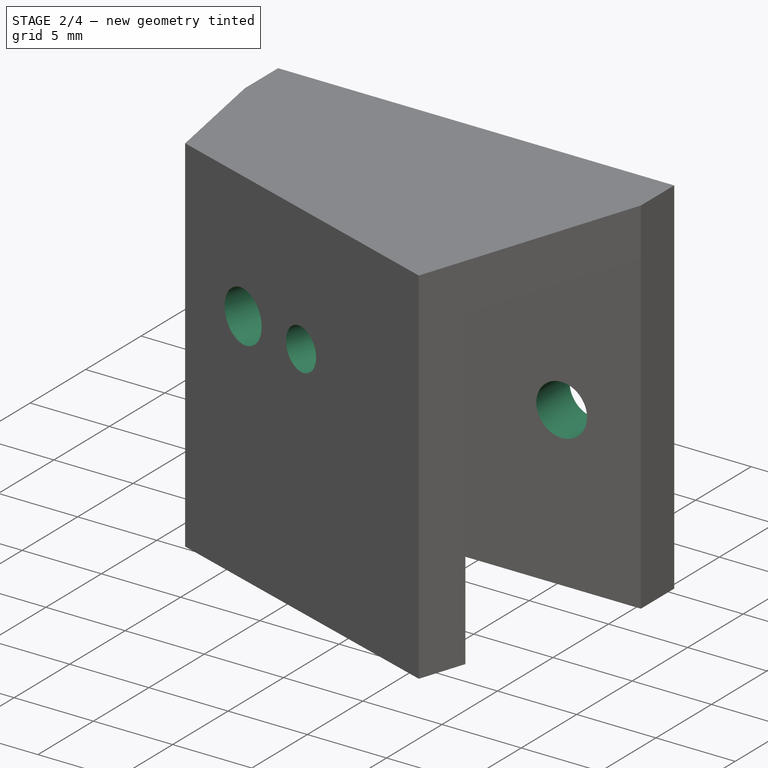
[diagram: stage 2 of 4 — iso view after this stage's code; geometry added in this stage tinted green]
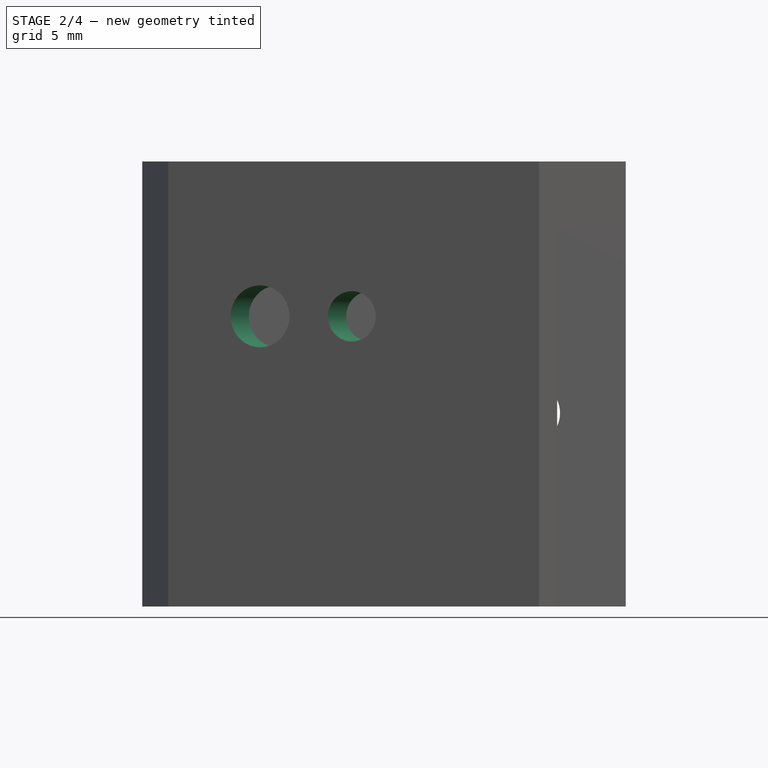
[diagram: stage 2 of 4 — front view after this stage's code; geometry added in this stage tinted green]
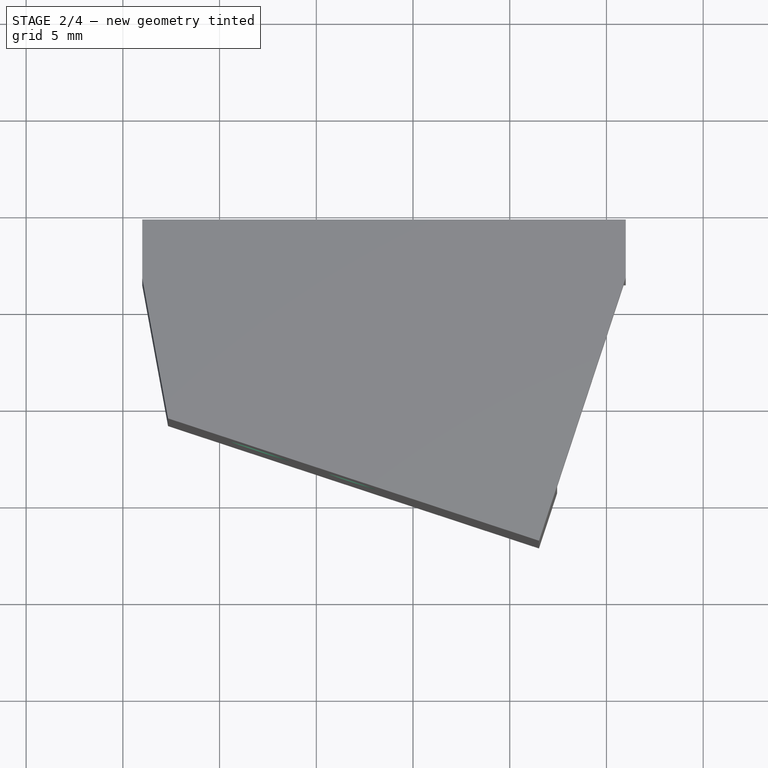
[diagram: stage 2 of 4 — top view after this stage's code; geometry added in this stage tinted green]
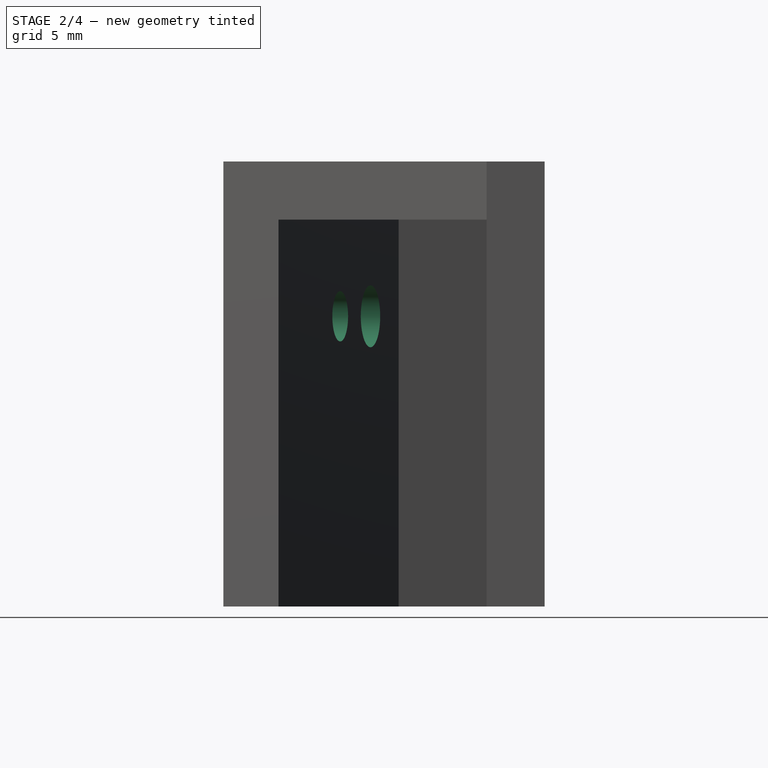
[diagram: stage 2 of 4 — right view after this stage's code; geometry added in this stage tinted green]
FEATURE [Sketcher::SketchObject] Sketch002
  FullyConstrained = false
  MapMode = 5
  Placement = pos=(-2.8e-15,-18.5,0) rot=(1,0,0;1.5708rad)
  Support = -> [Pad001]
  sketch-geometry (5):
    g0: LineSegment StartX=0 StartY=0 StartZ=0 EndX=41 EndY=0 EndZ=0
    g1: LineSegment StartX=46 StartY=5.91952 StartZ=0 EndX=46 EndY=-10 EndZ=0
    g2: Circle CenterX=46 CenterY=-10 CenterZ=0 NormalX=0 NormalY=0 NormalZ=1 AngleXU=0 Radius=1.6
    g3: Circle CenterX=61 CenterY=-10 CenterZ=0 NormalX=0 NormalY=0 NormalZ=1 AngleXU=0 Radius=1.6
    g4: LineSegment StartX=41 StartY=0 StartZ=0 EndX=66 EndY=0 EndZ=0
  constraints (14):
    c: Coincident(g0,g-1)
    c: Horizontal(g0)
    c: DistanceX(g0,g0) = 41
    c: Vertical(g1)
    c: DistanceX(g0,g1) = 5
    c: DistanceY(g1,g0) = 10
    c: Coincident(g2,g1)
    c: Diameter(g2) = 3.2
    c: Equal(g2,g3)
    c: Horizontal(g1,g3)
    c: DistanceX(g1,g3) = 15
    c: Coincident(g4,g0)
    c: Horizontal(g4)
    c: DistanceX(g4,g4) = 25
FEATURE [PartDesign::Pocket] Pocket
  BaseFeature = -> Pad001
  Length = 5
  Length2 = 100
  Profile = -> Sketch002
  Type = 1
FEATURE [Sketcher::SketchObject] Sketch003
  AttachmentOffset = pos=(-54,0,0) rot=(0,0,1;0rad)
  FullyConstrained = false
  MapMode = 5
  Placement = pos=(-54,0,0) rot=(0,0,1;0rad)
  Support = -> [XY_Plane]
  sketch-geometry (34):
    g0: Circle CenterX=0 CenterY=0 CenterZ=0 NormalX=0 NormalY=0 NormalZ=1 AngleXU=0 Radius=4
    g1: Circle CenterX=108 CenterY=0 CenterZ=0 NormalX=0 NormalY=0 NormalZ=1 AngleXU=0 Radius=4
    g2: LineSegment StartX=0 StartY=0 StartZ=0 EndX=7.48331 EndY=0 EndZ=0
    g3: LineSegment StartX=54 StartY=44 StartZ=0 EndX=54 EndY=0 EndZ=0
    g4: Circle CenterX=39 CenterY=0 CenterZ=0 NormalX=0 NormalY=0 NormalZ=1 AngleXU=0 Radius=2.5
    g5: Circle CenterX=79 CenterY=0 CenterZ=0 NormalX=0 NormalY=0 NormalZ=1 AngleXU=0 Radius=2.5
    g6: Circle CenterX=72.5 CenterY=0 CenterZ=0 NormalX=0 NormalY=0 NormalZ=1 AngleXU=0 Radius=1.5
    g7: Circle CenterX=68.5 CenterY=0 CenterZ=0 NormalX=0 NormalY=0 NormalZ=1 AngleXU=0 Radius=1.5
    g8: Circle CenterX=108 CenterY=16 CenterZ=0 NormalX=0 NormalY=0 NormalZ=1 AngleXU=0 Radius=2.6
    g9: Circle CenterX=108 CenterY=-16 CenterZ=0 NormalX=0 NormalY=0 NormalZ=1 AngleXU=0 Radius=2.6
    g10: Circle CenterX=54 CenterY=44 CenterZ=0 NormalX=0 NormalY=0 NormalZ=1 AngleXU=0 Radius=43.5
    g11: LineSegment StartX=54 StartY=0 StartZ=0 EndX=54 EndY=-44 EndZ=0
    g12: Circle CenterX=54 CenterY=-44 CenterZ=0 NormalX=0 NormalY=0 NormalZ=1 AngleXU=0 Radius=43.5
    g13: LineSegment StartX=80 StartY=5 StartZ=0 EndX=98 EndY=17.6037 EndZ=0
    g14: LineSegment StartX=98 StartY=22 StartZ=0 EndX=118 EndY=22 EndZ=0
    g15: LineSegment StartX=118 StartY=22 StartZ=0 EndX=118 EndY=-22 EndZ=0
    g16: LineSegment StartX=118 StartY=-22 StartZ=0 EndX=98 EndY=-22 EndZ=0
    g17: LineSegment StartX=98 StartY=-22 StartZ=0 EndX=98 EndY=-17.6037 EndZ=0
    g18: LineSegment StartX=98 StartY=17.6037 StartZ=0 EndX=98 EndY=22 EndZ=0
    g19: LineSegment StartX=28 StartY=-5 StartZ=0 EndX=10 EndY=-17.6037 EndZ=0
    g20: LineSegment StartX=28 StartY=5 StartZ=0 EndX=10 EndY=17.6037 EndZ=0
    g21: LineSegment StartX=10 StartY=17.6037 StartZ=0 EndX=10 EndY=22 EndZ=0
    g22: LineSegment StartX=10 StartY=22 StartZ=0 EndX=-10 EndY=22 EndZ=0
    g23: LineSegment StartX=-10 StartY=22 StartZ=0 EndX=-10 EndY=-22 EndZ=0
    g24: Circle CenterX=0 CenterY=16 CenterZ=0 NormalX=0 NormalY=0 NormalZ=1 AngleXU=0 Radius=2.6
    g25: Circle CenterX=0 CenterY=0 CenterZ=0 NormalX=0 NormalY=0 NormalZ=1 AngleXU=0 Radius=4
    g26: Circle CenterX=5e-16 CenterY=-16 CenterZ=0 NormalX=0 NormalY=0 NormalZ=1 AngleXU=0 Radius=2.6
    g27: LineSegment StartX=-10 StartY=-22 StartZ=0 EndX=10 EndY=-22 EndZ=0
    g28: LineSegment StartX=10 StartY=-22 StartZ=0 EndX=10 EndY=-17.6037 EndZ=0
    g29: LineSegment StartX=31.5978 StartY=23.4977 StartZ=0 EndX=31.5978 EndY=-53.4446 EndZ=0
    g30: LineSegment StartX=80 StartY=5 StartZ=0 EndX=13.0088 EndY=5 EndZ=0
    g31: LineSegment StartX=80 StartY=5 StartZ=0 EndX=28 EndY=5 EndZ=0
    g32: LineSegment StartX=28 StartY=-5 StartZ=0 EndX=80 EndY=-5 EndZ=0
    g33: LineSegment StartX=98 StartY=-17.6037 StartZ=0 EndX=80 EndY=-5 EndZ=0
  constraints (91):
    c: Coincident(g0,g-1)
    c: Diameter(g0) = 8
    c: Diameter(g1) = 8
    c: Coincident(g2,g0)
    c: PointOnObject(g2,g-1)
    c: DistanceX(g0,g1) = 108
    c: Horizontal(g1,g0)
    c: Vertical(g3)
    c: Symmetric(g0,g1,g3)
    c: PointOnObject(g4,g-1)
    c: PointOnObject(g5,g-1)
    c: Diameter(g4) = 5
    c: Equal(g4,g5)
    c: DistanceX(g4,g3) = 15
    c: DistanceX(g3,g5) = 25
    c: PointOnObject(g6,g-1)
    c: PointOnObject(g7,g-1)
    c: Diameter(g6) = 3
    c: Equal(g6,g7)
    c: DistanceX(g6,g5) = 6.5
    c: DistanceX(g7,g6) = 4
    c: Vertical(g9,g1)
    c: Vertical(g8,g1)
    c: Diameter(g9) = 5.2
    c: Equal(g9,g8)
    c: DistanceY(g1,g8) = 16
    c: DistanceY(g9,g1) = 16
    c: Coincident(g10,g3)
    c: Coincident(g11,g3)
    c: Vertical(g11)
    c: Coincident(g12,g11)
    c: Diameter(g12) = 87
    c: Equal(g12,g10)
    c: DistanceY(g3,g3) = 44
    c: DistanceY(g11,g11) = 44
    c: DistanceX(g3,g13) = 26
    c: Coincident(g14,g15)
    c: Coincident(g15,g16)
    c: Coincident(g16,g17)
    c: Coincident(g18,g14)
    c: Horizontal(g14)
    c: Horizontal(g16)
    c: Vertical(g15)
    c: Vertical(g17)
    c: Symmetric(g14,g15,g1)
    c: DistanceY(g15,g15) = 44
    c: PointOnObject(g13,g17)
    c: DistanceX(g16,g16) = 20
    c: PointOnObject(g18,g13)
    c: Vertical(g18)
    c: Equal(g14,g16)
    c: Equal(g17,g18)
    c: Diameter(g25) = 8
    c: Diameter(g26) = 5.2
    c: Equal(g26,g24)
    c: Coincident(g22,g23)
    c: Coincident(g23,g27)
    c: Coincident(g27,g28)
    c: Coincident(g21,g22)
    c: Horizontal(g22)
    c: Horizontal(g27)
    c: Vertical(g23)
    c: Vertical(g28)
    c: Symmetric(g22,g23,g25)
    c: PointOnObject(g20,g28)
    c: PointOnObject(g21,g20)
    c: Vertical(g21)
    c: Equal(g22,g27)
    c: Equal(g28,g21)
    c: Coincident(g19,g28)
    c: Equal(g23,g15)
    c: Equal(g22,g14)
    c: Equal(g19,g20)
    c: Vertical(g29)
    c: DistanceX(g23,g26) = 10
    c: DistanceY(g3,g13) = 5
    c: Coincident(g30,g13)
    c: Horizontal(g30)
    c: Angle(g13,g-1) = 2.53073
    c: Coincident(g31,g13)
    c: Horizontal(g20,g13)
    c: DistanceX(g20,g3) = 26
    c: Coincident(g31,g20)
    c: Angle(g20,g-1) = 0.610865
    c: Coincident(g25,g-1)
    c: Angle(g-1,g19) = 0.610865
    c: Coincident(g32,g19)
    c: Horizontal(g32)
    c: Coincident(g33,g17)
    c: Angle(g-1,g33) = 2.53073
    c: Coincident(g32,g33)
FEATURE [Sketcher::SketchObject] Sketch004
  FullyConstrained = false
  MapMode = 5
  Placement = pos=(-3.51546,-10.6582,0) rot=(0.975146,-0.156668,-0.156668;1.59596rad)
  Support = -> [Pocket]
  sketch-geometry (5):
    g0: LineSegment StartX=0 StartY=0 StartZ=0 EndX=48.29 EndY=0 EndZ=0
    g1: LineSegment StartX=53.29 StartY=4.82207 StartZ=0 EndX=53.29 EndY=-5 EndZ=0
    g2: LineSegment StartX=42.5983 StartY=-5 StartZ=0 EndX=53.29 EndY=-5 EndZ=0
    g3: Circle CenterX=53.29 CenterY=-5 CenterZ=0 NormalX=0 NormalY=0 NormalZ=1 AngleXU=0 Radius=1.6
    g4: Circle CenterX=58.29 CenterY=-5 CenterZ=0 NormalX=0 NormalY=0 NormalZ=1 AngleXU=0 Radius=1.3
  constraints (13):
    c: Coincident(g0,g-1)
    c: PointOnObject(g0,g-1)
    c: DistanceX(g0,g0) = 48.29
    c: Vertical(g1)
    c: DistanceX(g0,g1) = 5
    c: Horizontal(g2)
    c: DistanceY(g2,g0) = 5
    c: Coincident(g1,g2)
    c: Coincident(g3,g1)
    c: Diameter(g3) = 3.2
    c: Horizontal(g1,g4)
    c: Diameter(g4) = 2.6
    c: DistanceX(g1,g4) = 5
FEATURE [PartDesign::Pocket] Pocket001
  BaseFeature = -> Pocket
  Length = 3
  Length2 = 100
  Profile = -> Sketch004
  Type = 0
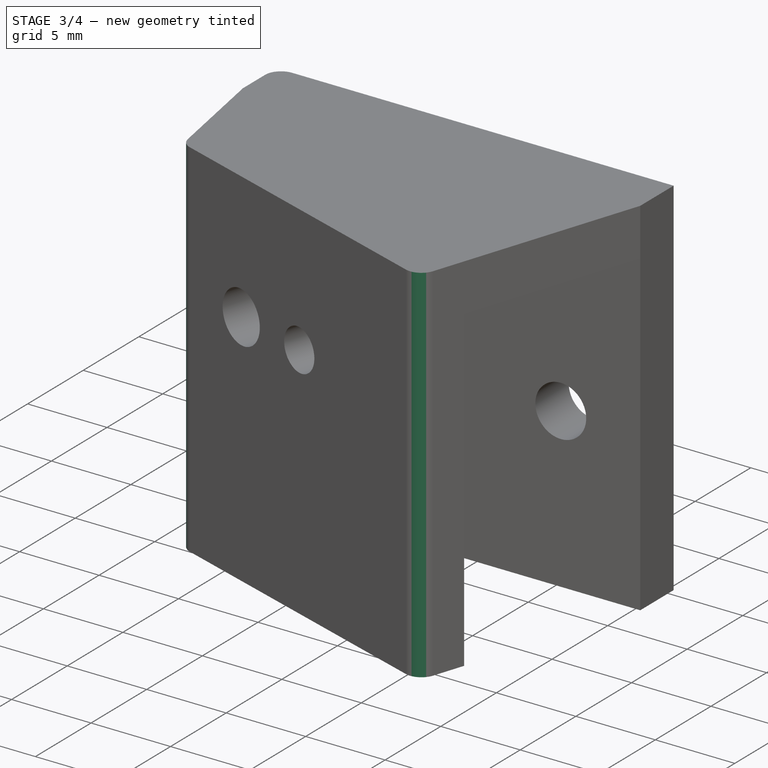
[diagram: stage 3 of 4 — iso view after this stage's code; geometry added in this stage tinted green]
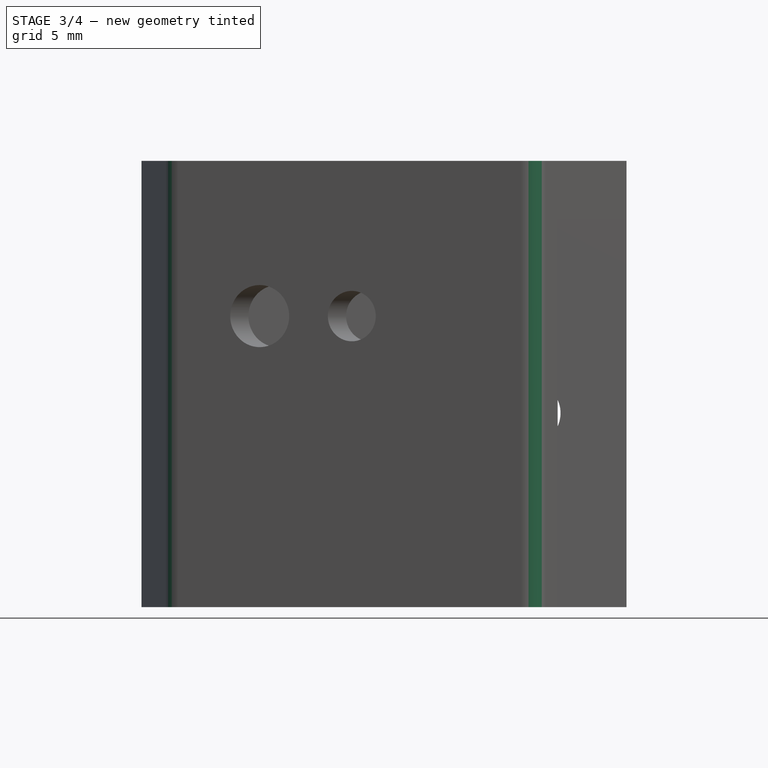
[diagram: stage 3 of 4 — front view after this stage's code; geometry added in this stage tinted green]
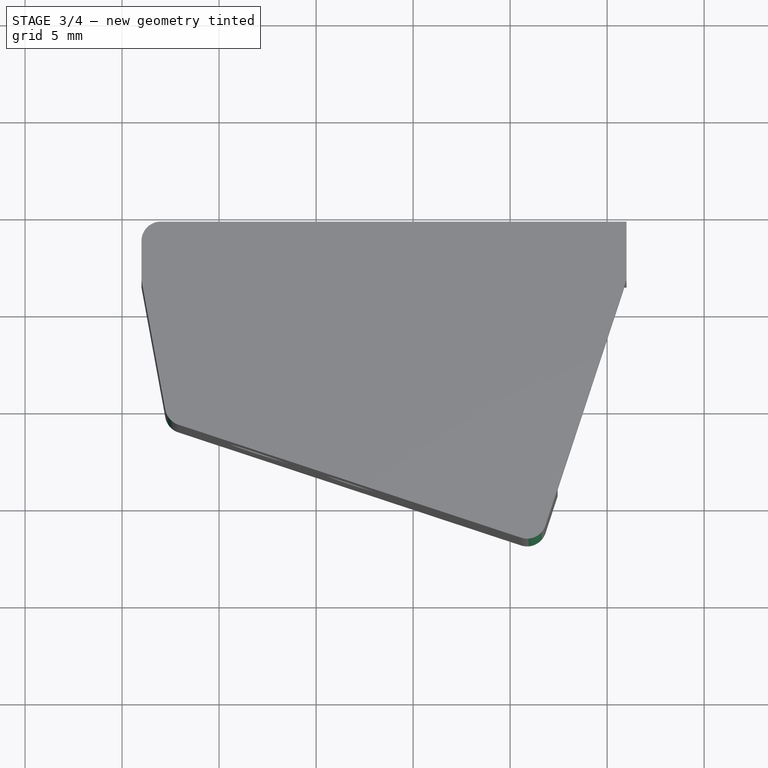
[diagram: stage 3 of 4 — top view after this stage's code; geometry added in this stage tinted green]
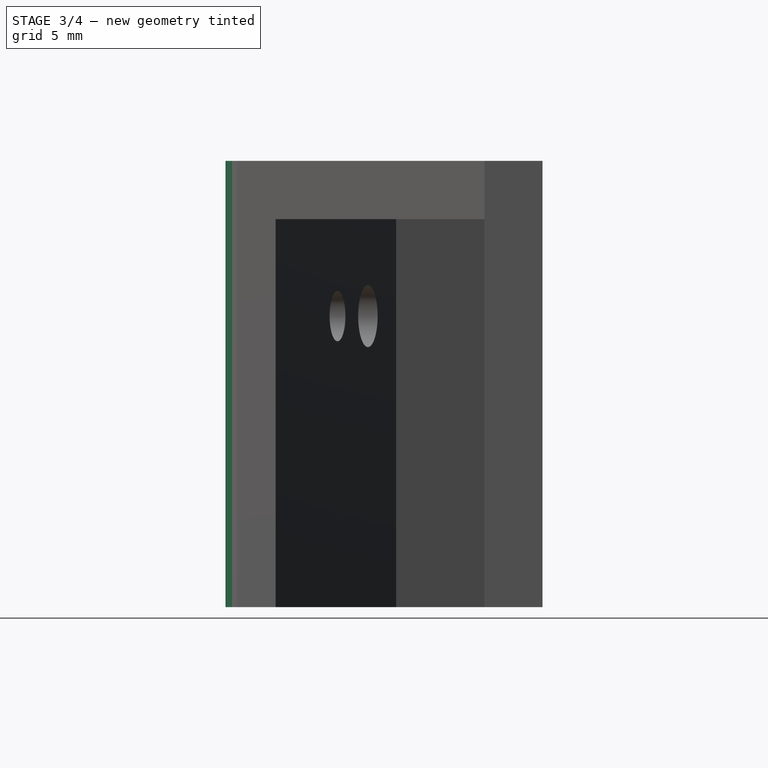
[diagram: stage 3 of 4 — right view after this stage's code; geometry added in this stage tinted green]
FEATURE [PartDesign::Fillet] Fillet
  Base = -> Pocket001 [Edge27,Edge8]
  BaseFeature = -> Pocket001
  Radius = 1
  SupportTransform = false
FEATURE [PartDesign::Fillet] Fillet001
  Base = -> Fillet [Edge53,Edge41]
  BaseFeature = -> Fillet
  Radius = 1
  SupportTransform = false
FEATURE [PartDesign::Fillet] Fillet002
  Base = -> Fillet001 [Edge27,Edge53]
  BaseFeature = -> Fillet001
  Radius = 1
  SupportTransform = false
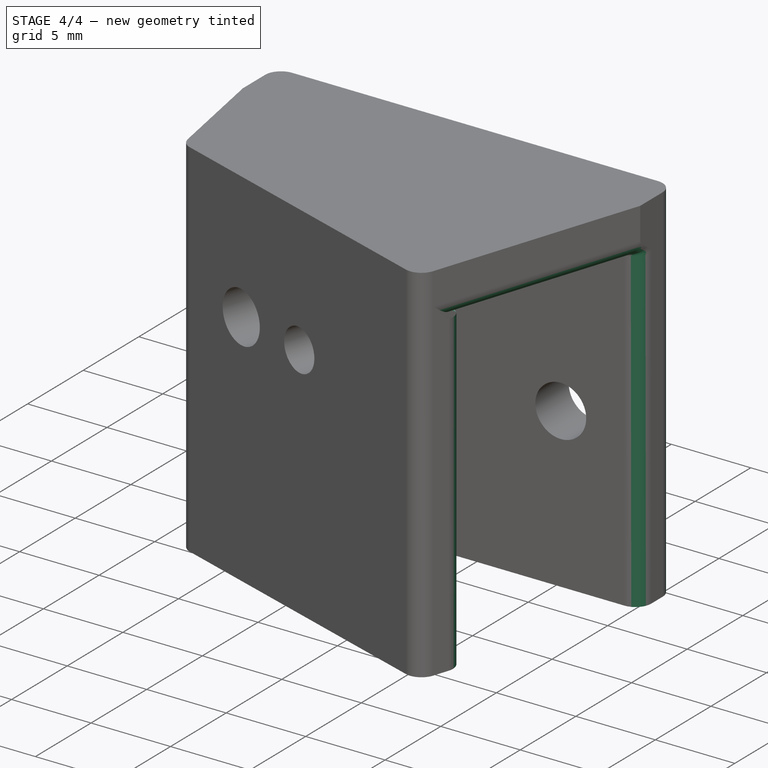
[diagram: stage 4 of 4 — iso view after this stage's code; geometry added in this stage tinted green]
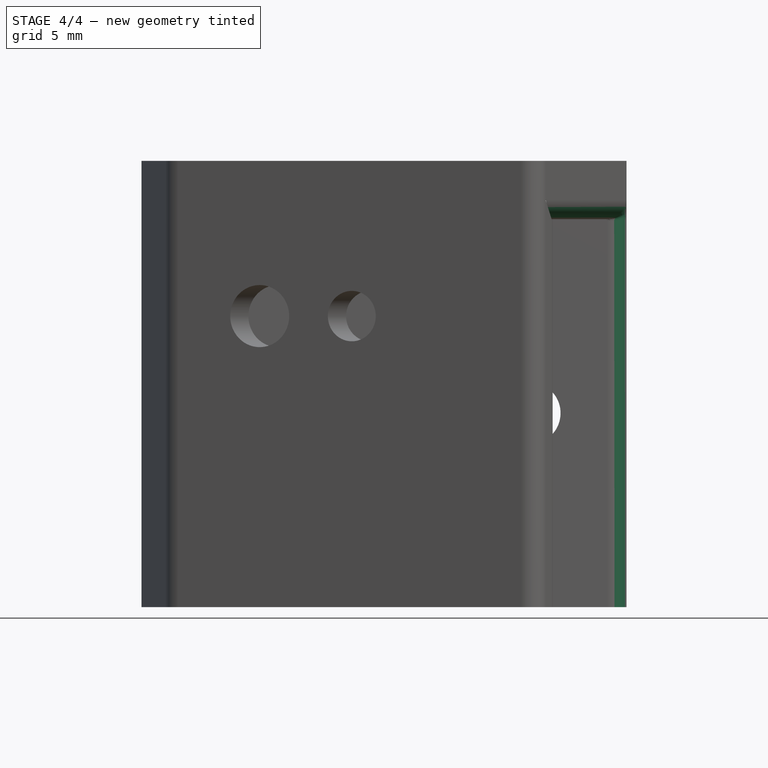
[diagram: stage 4 of 4 — front view after this stage's code; geometry added in this stage tinted green]
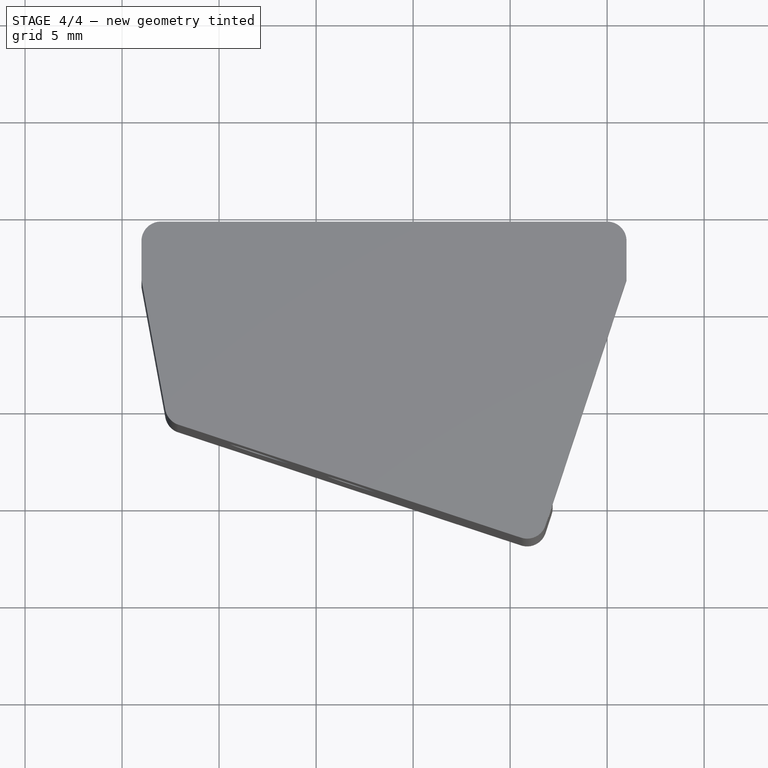
[diagram: stage 4 of 4 — top view after this stage's code; geometry added in this stage tinted green]
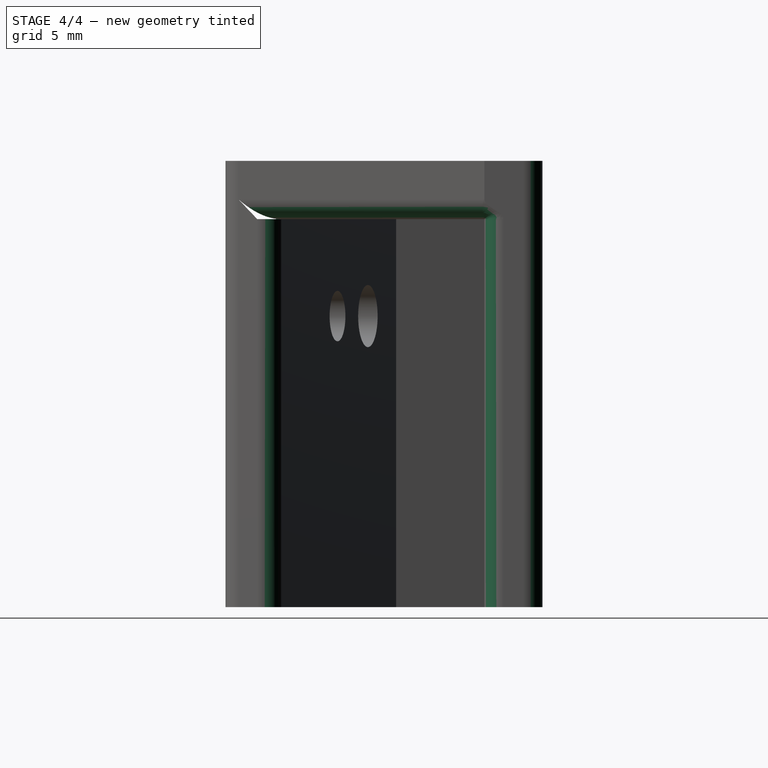
[diagram: stage 4 of 4 — right view after this stage's code; geometry added in this stage tinted green]
FEATURE [PartDesign::Fillet] Fillet003
  Base = -> Fillet002 [Edge14,Edge36]
  BaseFeature = -> Fillet002
  Radius = 1
  SupportTransform = false
FEATURE [PartDesign::Fillet] Fillet004
  Base = -> Fillet003 [Edge26,Edge47,Edge52]
  BaseFeature = -> Fillet003
  Radius = 1
  SupportTransform = false
FEATURE [PartDesign::Body] Body
  Group = -> [Sketch,Sketch001,Pad,Pad001,Sketch002,Pocket,Sketch003,Sketch004,Pocket001,Fillet,Fillet001,Fillet002,Fillet003,Fillet004]
  Origin = -> Origin
  Tip = -> Fillet004
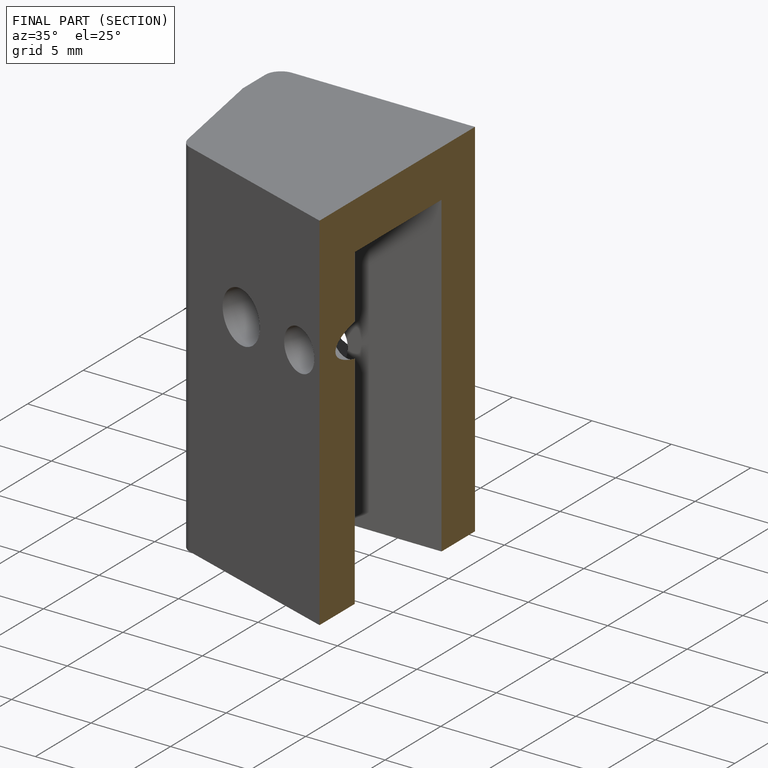
[diagram: finished part — half-section view (interior)]
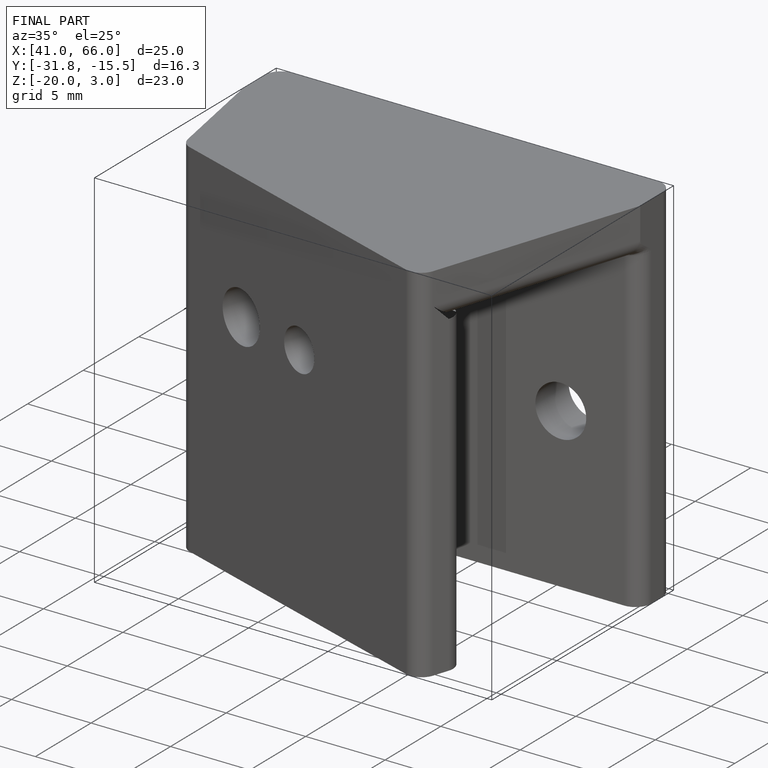
[diagram: finished part — iso view with bounding-box wireframe]
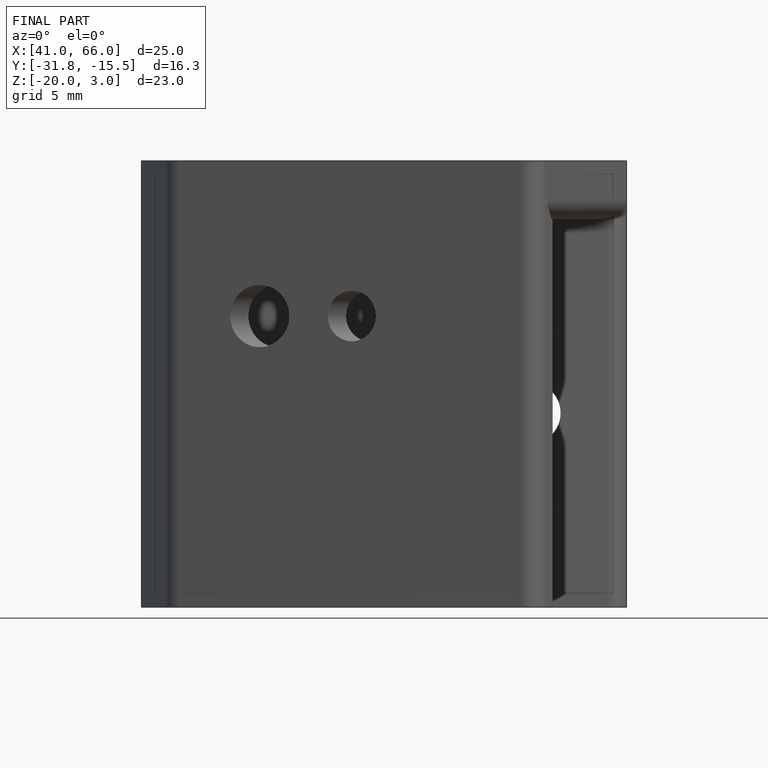
[diagram: finished part — front view with bounding-box wireframe]
